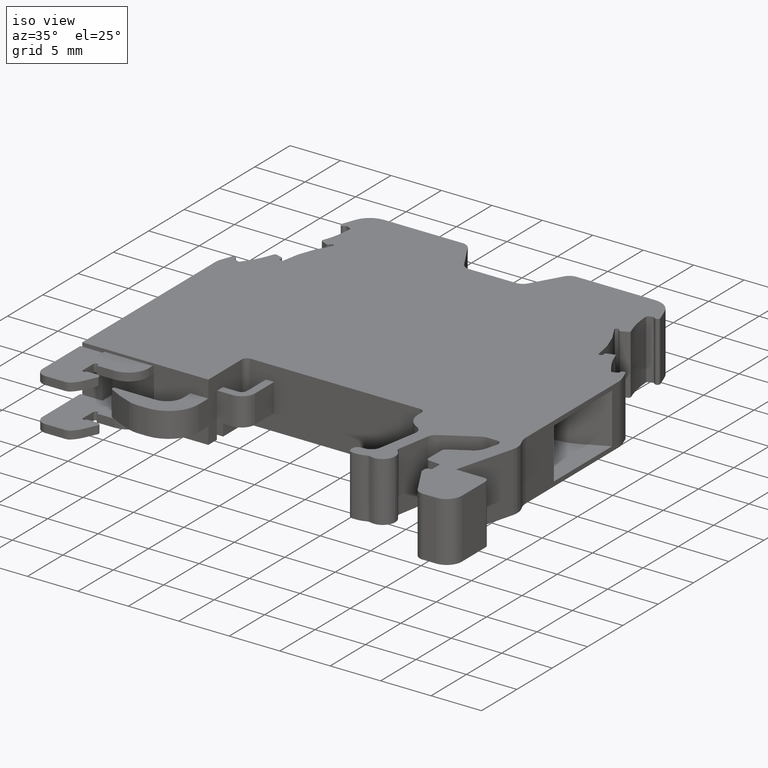
[diagram: clean part render]
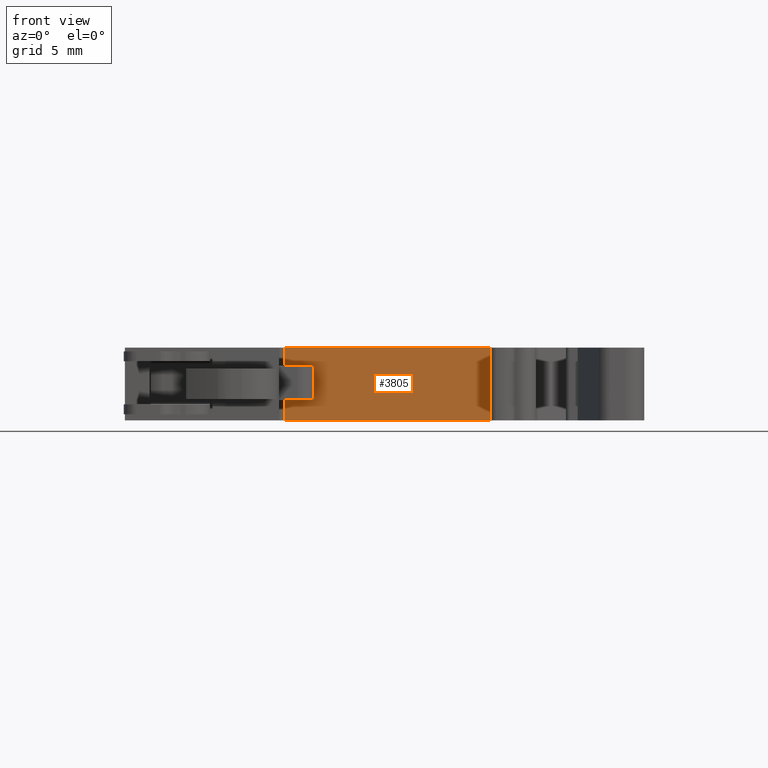
[diagram: tour spotlight — one face highlighted and labeled with its STEP entity id]
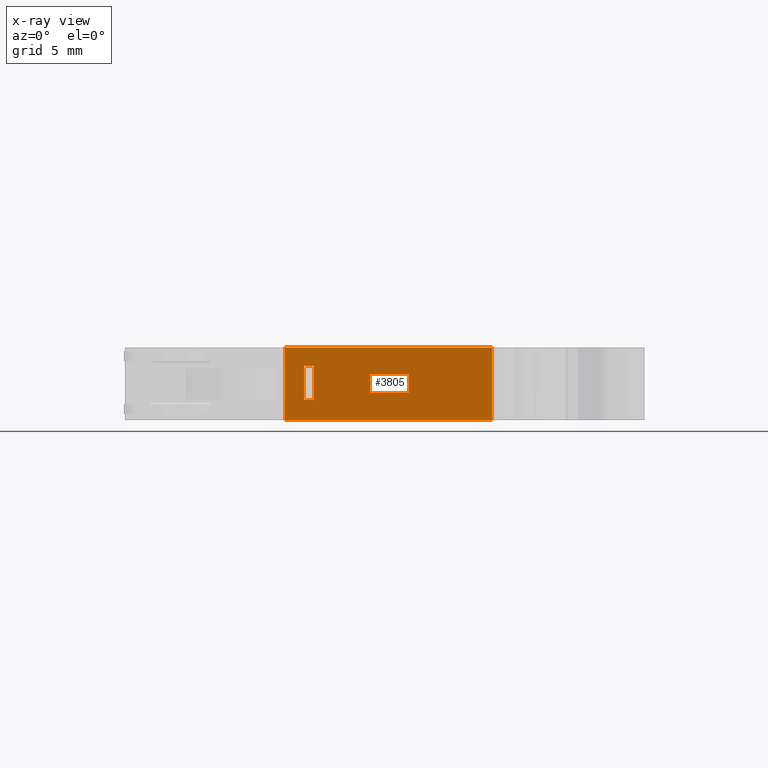
[diagram: x-ray of the same camera — body ghosted, this tour face saturated]
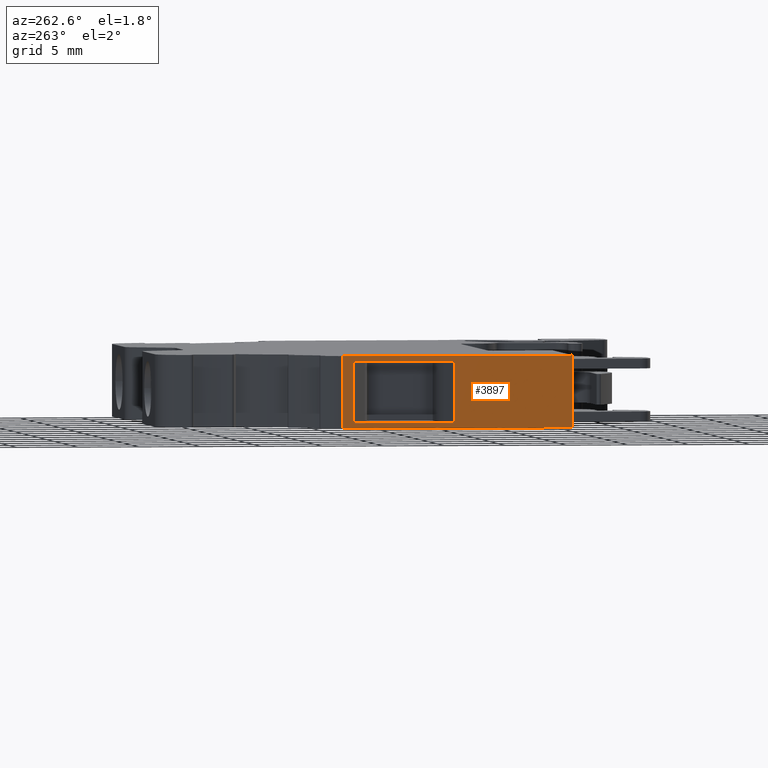
[diagram: tour spotlight — one face highlighted and labeled with its STEP entity id]
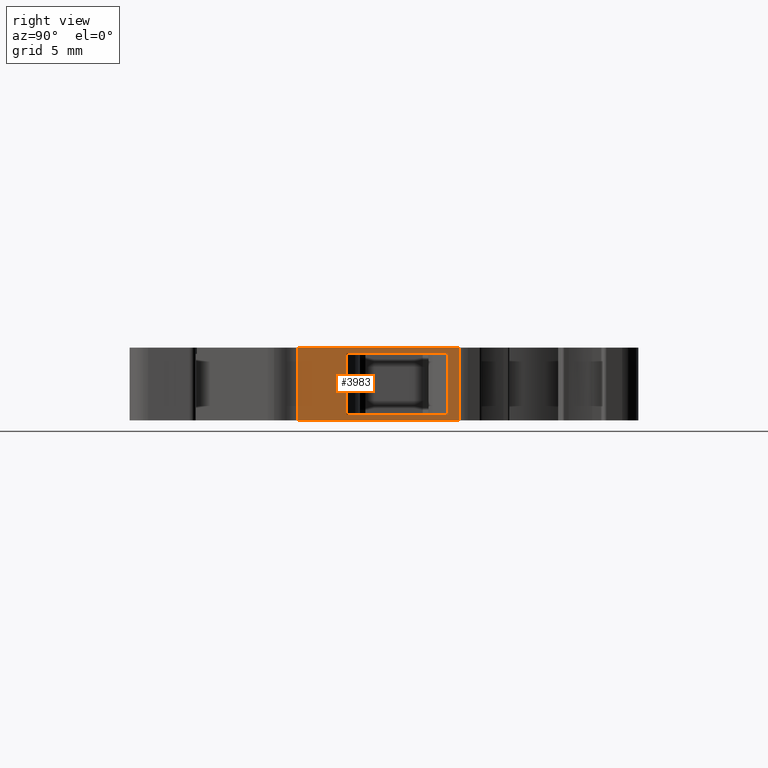
[diagram: tour spotlight — one face highlighted and labeled with its STEP entity id]
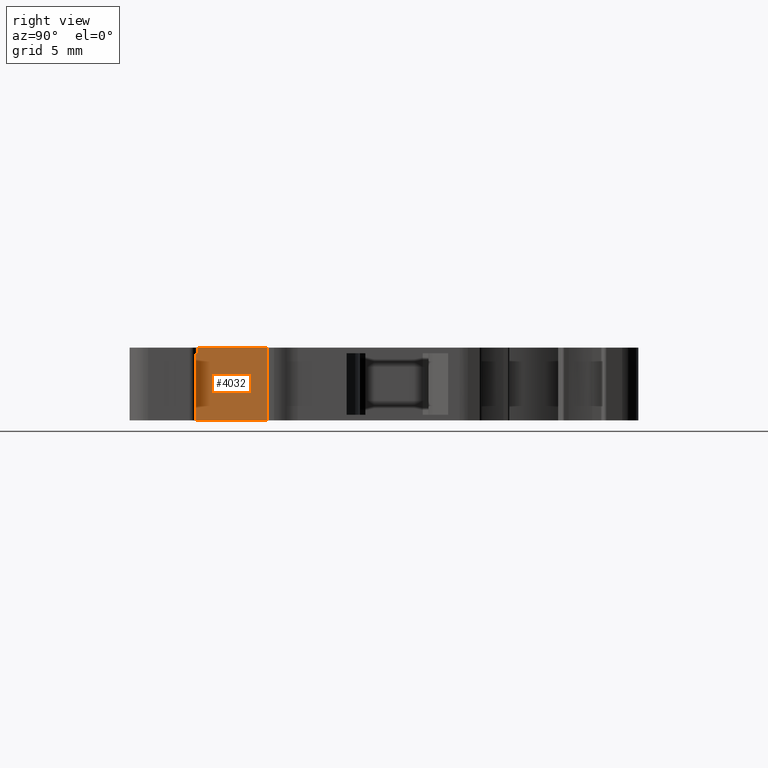
[diagram: tour spotlight — one face highlighted and labeled with its STEP entity id]
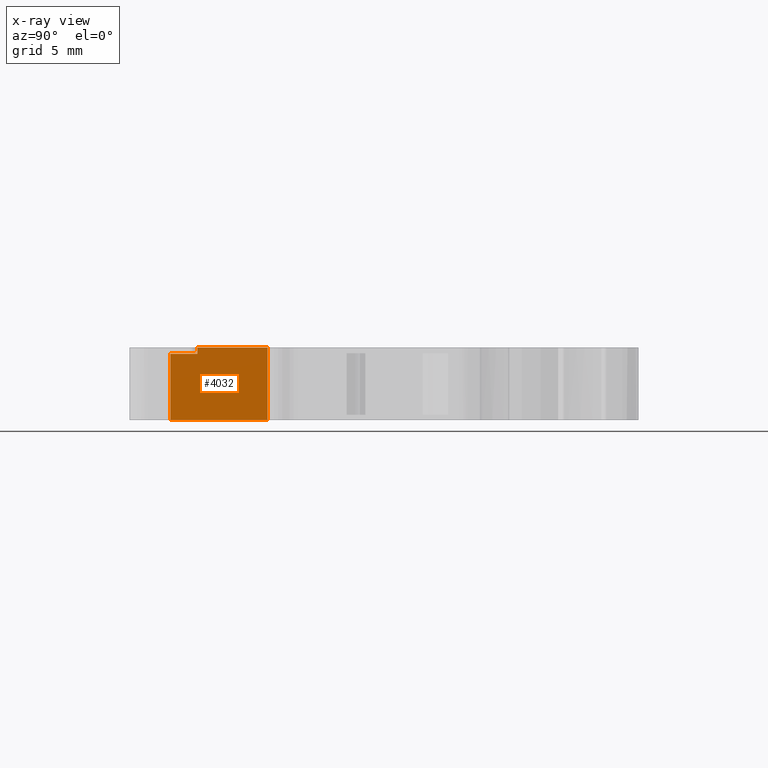
[diagram: x-ray of the same camera — body ghosted, this tour face saturated]
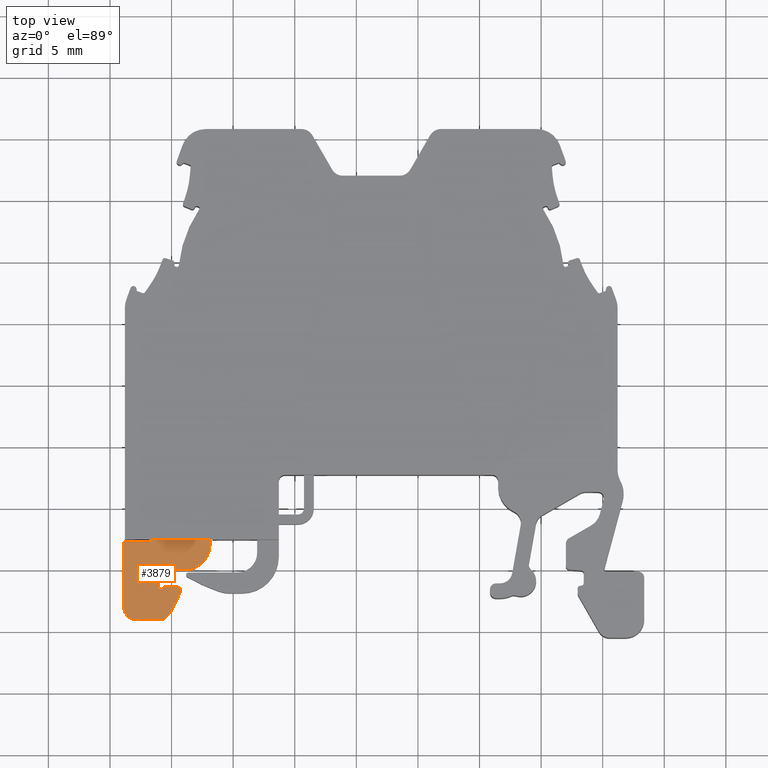
[diagram: tour spotlight — one face highlighted and labeled with its STEP entity id]
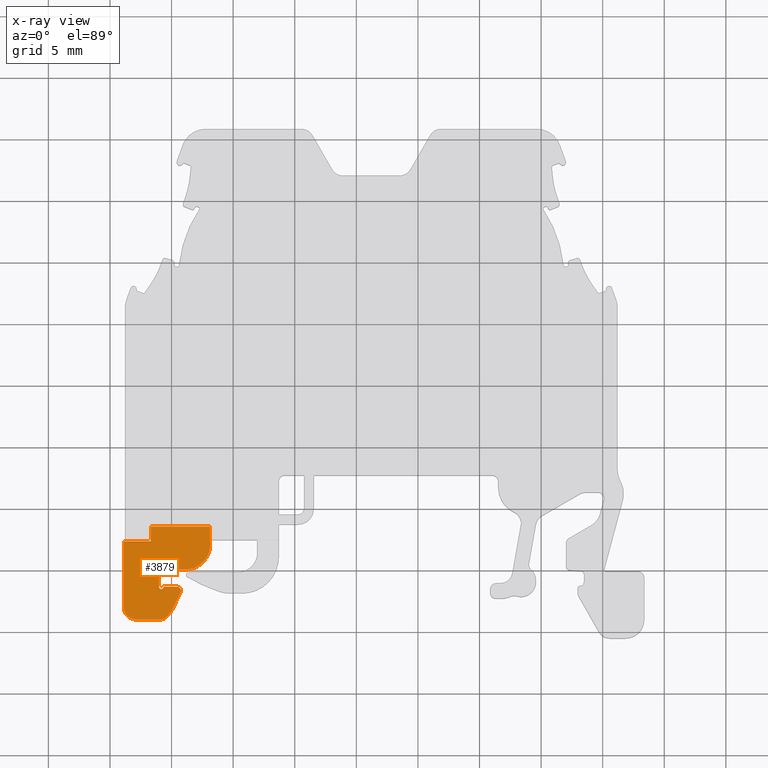
[diagram: x-ray of the same camera — body ghosted, this tour face saturated]
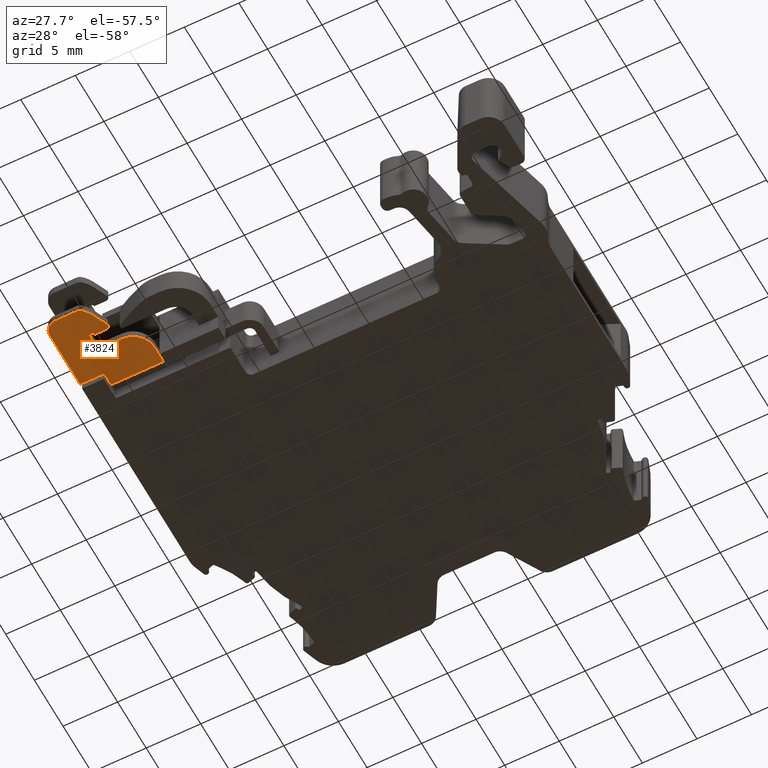
[diagram: tour spotlight — one face highlighted and labeled with its STEP entity id]
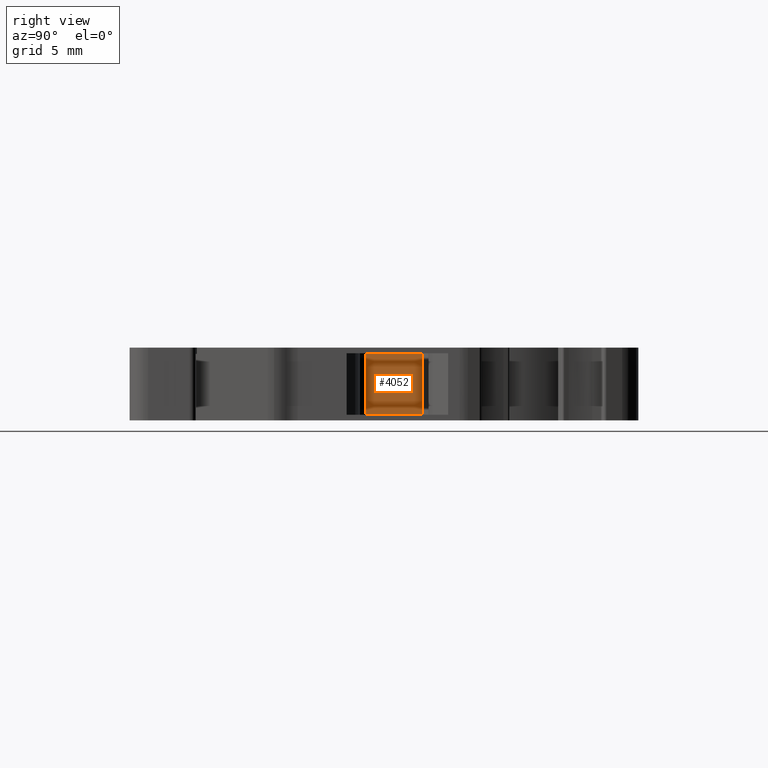
[diagram: tour spotlight — one face highlighted and labeled with its STEP entity id]
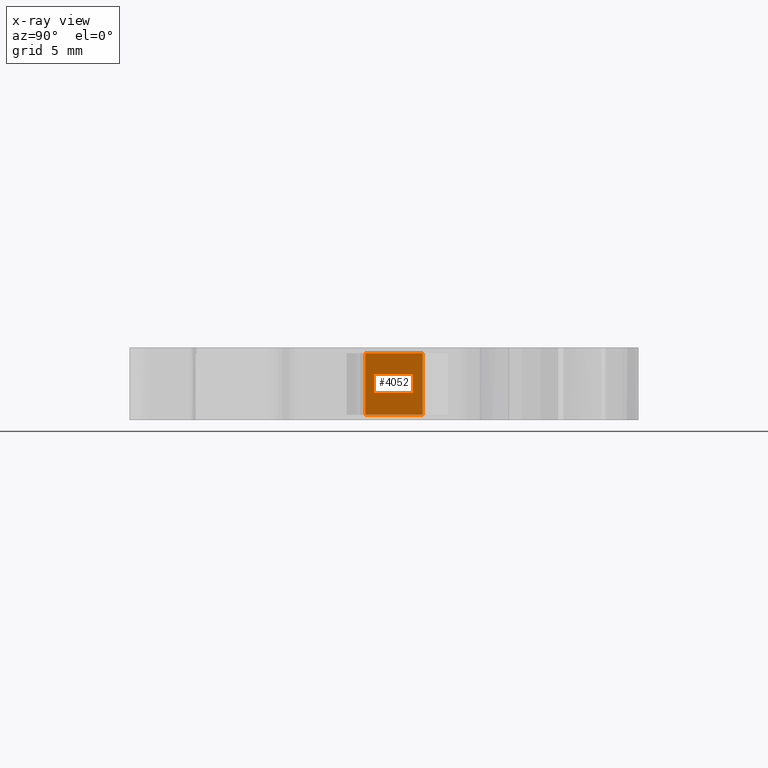
[diagram: x-ray of the same camera — body ghosted, this tour face saturated]
A machine part: a face-by-face anatomy tour. The part has 270 B-rep faces; the first image is the clean iso view, then the 7 largest visible faces are spotlighted one at a time (largest first), each with its STEP entity span.

Face 1 — front view, entity #3805. An x-ray twin of the same camera follows (body ghosted, this face saturated) — the face is partly hidden behind the body. In plain terms, the highlighted planar face has unit normal (-0, -1, 0).
Definition (entity closure, byte-faithful):
#290 = EDGE_LOOP ( 'NONE', ( #562, #536, #564, #544 ) ) ;
#293 = EDGE_LOOP ( 'NONE', ( #568, #529, #551, #533 ) ) ;
#529 = ORIENTED_EDGE ( 'NONE', *, *, #4327, .T. ) ;
#533 = ORIENTED_EDGE ( 'NONE', *, *, #4352, .F. ) ;
#536 = ORIENTED_EDGE ( 'NONE', *, *, #4247, .T. ) ;
#544 = ORIENTED_EDGE ( 'NONE', *, *, #4331, .T. ) ;
#551 = ORIENTED_EDGE ( 'NONE', *, *, #4313, .T. ) ;
#562 = ORIENTED_EDGE ( 'NONE', *, *, #4326, .F. ) ;
#564 = ORIENTED_EDGE ( 'NONE', *, *, #4171, .F. ) ;
#568 = ORIENTED_EDGE ( 'NONE', *, *, #4245, .T. ) ;
#1093 = VERTEX_POINT ( 'NONE', #8262 ) ;
#1178 = VERTEX_POINT ( 'NONE', #7699 ) ;
#1179 = VERTEX_POINT ( 'NONE', #7727 ) ;
#1214 = VERTEX_POINT ( 'NONE', #9705 ) ;
#1216 = VERTEX_POINT ( 'NONE', #9668 ) ;
#1226 = VERTEX_POINT ( 'NONE', #9683 ) ;
#1228 = VERTEX_POINT ( 'NONE', #9657 ) ;
#1246 = VERTEX_POINT ( 'NONE', #9660 ) ;
#1528 = AXIS2_PLACEMENT_3D ( 'NONE', #4506, #4496, #4462 ) ;
#1825 = VECTOR ( 'NONE', #9059, 1000.000000000000000 ) ;
#1862 = VECTOR ( 'NONE', #9432, 1000.000000000000000 ) ;
#1890 = VECTOR ( 'NONE', #9435, 1000.000000000000000 ) ;
#1921 = VECTOR ( 'NONE', #2881, 1000.000000000000000 ) ;
#1947 = VECTOR ( 'NONE', #2660, 1000.000000000000000 ) ;
#1950 = VECTOR ( 'NONE', #2808, 1000.000000000000000 ) ;
#1968 = VECTOR ( 'NONE', #2732, 1000.000000000000000 ) ;
#2660 = DIRECTION ( 'NONE',  ( 0.0000000000000000000, 0.0000000000000000000, 1.000000000000000000 ) ) ;
#2684 = CARTESIAN_POINT ( 'NONE',  ( 1696.008848378084600, 337.6986009364560500, -62.07273415799103600 ) ) ;
#2688 = LINE ( 'NONE', #2684, #1947 ) ;
#2717 = CARTESIAN_POINT ( 'NONE',  ( 1690.408883333013100, 337.6986025649917500, -3.049999999943056500 ) ) ;
#2718 = CARTESIAN_POINT ( 'NONE',  ( 1696.008848378084600, 337.6986009364561000, -3.049999999943073800 ) ) ;
#2727 = CARTESIAN_POINT ( 'NONE',  ( 1684.808918287941700, 337.6986041935273900, -3.049999999943056500 ) ) ;
#2728 = CARTESIAN_POINT ( 'NONE',  ( 1682.085109593310100, 337.6986051683812200, 1.398790164701575900 ) ) ;
#2732 = DIRECTION ( 'NONE',  ( -1.000000000000000000, -0.0000000000000000000, 1.644515809379887600E-015 ) ) ;
#2735 = LINE ( 'NONE', #2763, #1950 ) ;
#2745 = CARTESIAN_POINT ( 'NONE',  ( 1679.208953242869900, 337.6986058220631400, -3.049999999943057400 ) ) ;
#2755 = LINE ( 'NONE', #2728, #1968 ) ;
#2763 = CARTESIAN_POINT ( 'NONE',  ( 1680.748959148920000, 337.6986053742112400, -62.07273415799103600 ) ) ;
#2808 = DIRECTION ( 'NONE',  ( 0.0000000000000000000, 0.0000000000000000000, 1.000000000000000000 ) ) ;
#2870 = CARTESIAN_POINT ( 'NONE',  ( 1701.754414352425100, 337.6986058220630900, 2.850000000059721200 ) ) ;
#2881 = DIRECTION ( 'NONE',  ( 1.000000000000000000, 0.0000000000000000000, -0.0000000000000000000 ) ) ;
#2904 = LINE ( 'NONE', #2870, #1921 ) ;
#3805 = ADVANCED_FACE ( 'NONE', ( #4487, #4494 ), #4504, .T. ) ;
#4171 = EDGE_CURVE ( 'NONE', #1093, #1178, #9025, .T. ) ;
#4245 = EDGE_CURVE ( 'NONE', #1214, #1228, #9419, .T. ) ;
#4247 = EDGE_CURVE ( 'NONE', #1179, #1178, #9433, .T. ) ;
#4313 = EDGE_CURVE ( 'NONE', #1226, #1216, #2688, .T. ) ;
#4326 = EDGE_CURVE ( 'NONE', #1179, #1246, #2755, .T. ) ;
#4327 = EDGE_CURVE ( 'NONE', #1228, #1226, #6503, .T. ) ;
#4331 = EDGE_CURVE ( 'NONE', #1093, #1246, #2735, .T. ) ;
#4352 = EDGE_CURVE ( 'NONE', #1214, #1216, #2904, .T. ) ;
#4462 = DIRECTION ( 'NONE',  ( 0.9999999999999578100, -2.908117574975970900E-007, 0.0000000000000000000 ) ) ;
#4487 = FACE_OUTER_BOUND ( 'NONE', #293, .T. ) ;
#4494 = FACE_BOUND ( 'NONE', #290, .T. ) ;
#4496 = DIRECTION ( 'NONE',  ( -2.908117574975970900E-007, -0.9999999999999578100, 0.0000000000000000000 ) ) ;
#4504 = PLANE ( 'NONE',  #1528 ) ;
#4506 = CARTESIAN_POINT ( 'NONE',  ( 1679.208953242869900, 337.6986058220630900, -62.07273415799103600 ) ) ;
#6503 = B_SPLINE_CURVE_WITH_KNOTS ( 'NONE', 3,
 ( #2745, #2727, #2717, #2718 ),
 .UNSPECIFIED., .F., .F.,
 ( 4, 4 ),
 ( 0.0000000000000000000, 1.000000000000000000 ),
 .UNSPECIFIED. ) ;
#7699 = CARTESIAN_POINT ( 'NONE',  ( 1681.548959084762800, 337.6986052330059900, -1.401209835298408400 ) ) ;
#7727 = CARTESIAN_POINT ( 'NONE',  ( 1681.548959053383000, 337.6986051665501800, 1.398790164701583200 ) ) ;
#8262 = CARTESIAN_POINT ( 'NONE',  ( 1680.748958959710300, 337.6986053589166700, -1.401209835298407000 ) ) ;
#9025 = LINE ( 'NONE', #9062, #1825 ) ;
#9059 = DIRECTION ( 'NONE',  ( 1.000000000000000000, -0.0000000000000000000, -1.644515809379887600E-015 ) ) ;
#9062 = CARTESIAN_POINT ( 'NONE',  ( 1680.248958321860100, 337.6986053677486600, -1.401209835298405900 ) ) ;
#9395 = CARTESIAN_POINT ( 'NONE',  ( 1681.548958959244400, 337.6986051415619300, -62.07273415799103600 ) ) ;
#9416 = CARTESIAN_POINT ( 'NONE',  ( 1679.208953242869900, 337.6986058220630900, -62.07273415799103600 ) ) ;
#9419 = LINE ( 'NONE', #9416, #1862 ) ;
#9432 = DIRECTION ( 'NONE',  ( -0.0000000000000000000, -0.0000000000000000000, -1.000000000000000000 ) ) ;
#9433 = LINE ( 'NONE', #9395, #1890 ) ;
#9435 = DIRECTION ( 'NONE',  ( -0.0000000000000000000, -0.0000000000000000000, -1.000000000000000000 ) ) ;
#9657 = CARTESIAN_POINT ( 'NONE',  ( 1679.208953242869900, 337.6986058220631400, -3.049999999943057400 ) ) ;
#9660 = CARTESIAN_POINT ( 'NONE',  ( 1680.748959148686900, 337.6986052924608500, 1.398790164701584100 ) ) ;
#9668 = CARTESIAN_POINT ( 'NONE',  ( 1696.008848378084600, 337.6986009364561000, 2.850000000059717200 ) ) ;
#9683 = CARTESIAN_POINT ( 'NONE',  ( 1696.008848378084600, 337.6986009364561000, -3.049999999943073800 ) ) ;
#9705 = CARTESIAN_POINT ( 'NONE',  ( 1679.208953242869900, 337.6986058220630900, 2.850000000059717200 ) ) ;

Face 2 — auxiliary view, entity #3897. In plain terms, the highlighted planar face has unit normal (-1, 0, 0).
Definition (entity closure, byte-faithful):
#57 = EDGE_LOOP ( 'NONE', ( #6221, #6169, #6220, #6175 ) ) ;
#72 = EDGE_LOOP ( 'NONE', ( #6252, #6174, #6201, #6190 ) ) ;
#965 = EDGE_CURVE ( 'NONE', #6158, #6096, #6813, .T. ) ;
#1222 = VERTEX_POINT ( 'NONE', #9693 ) ;
#1244 = VERTEX_POINT ( 'NONE', #9658 ) ;
#1275 = VECTOR ( 'NONE', #6831, 1000.000000000000100 ) ;
#1392 = VECTOR ( 'NONE', #9631, 1000.000000000000100 ) ;
#1430 = VECTOR ( 'NONE', #2000, 1000.000000000000000 ) ;
#1482 = VECTOR ( 'NONE', #2015, 1000.000000000000100 ) ;
#1489 = VECTOR ( 'NONE', #2203, 1000.000000000000000 ) ;
#1497 = VECTOR ( 'NONE', #2040, 1000.000000000000000 ) ;
#1513 = VECTOR ( 'NONE', #2101, 1000.000000000000000 ) ;
#1618 = AXIS2_PLACEMENT_3D ( 'NONE', #5097, #5181, #5183 ) ;
#1984 = CARTESIAN_POINT ( 'NONE',  ( 1666.208847747656100, 341.7030214376742900, -2.599999999950003200 ) ) ;
#1986 = LINE ( 'NONE', #1984, #1482 ) ;
#1991 = LINE ( 'NONE', #2027, #1430 ) ;
#2000 = DIRECTION ( 'NONE',  ( 1.036171361727203400E-025, 1.060058020328782400E-020, -1.000000000000000000 ) ) ;
#2015 = DIRECTION ( 'NONE',  ( 6.220464541425654800E-007, 0.9999999999998064900, -0.0000000000000000000 ) ) ;
#2027 = CARTESIAN_POINT ( 'NONE',  ( 1666.208841987195000, 332.4425214925665300, -2.999999999943195200 ) ) ;
#2029 = LINE ( 'NONE', #2079, #1497 ) ;
#2040 = DIRECTION ( 'NONE',  ( -0.0000000000000000000, -0.0000000000000000000, -1.000000000000000000 ) ) ;
#2079 = CARTESIAN_POINT ( 'NONE',  ( 1666.208853683067900, 351.2447713878120200, -62.07273415799103600 ) ) ;
#2085 = LINE ( 'NONE', #2097, #1513 ) ;
#2097 = CARTESIAN_POINT ( 'NONE',  ( 1666.208853106391900, 350.3177087069331000, -62.07273415799103600 ) ) ;
#2101 = DIRECTION ( 'NONE',  ( 0.0000000000000000000, 0.0000000000000000000, 1.000000000000000000 ) ) ;
#2203 = DIRECTION ( 'NONE',  ( -0.0000000000000000000, -0.0000000000000000000, -1.000000000000000000 ) ) ;
#2211 = LINE ( 'NONE', #2215, #1489 ) ;
#2215 = CARTESIAN_POINT ( 'NONE',  ( 1666.208847984620000, 342.0839635412322100, -62.07273415799103600 ) ) ;
#2768 = CARTESIAN_POINT ( 'NONE',  ( 1666.208849784443600, 344.9773547560635100, -3.049999999942945500 ) ) ;
#2771 = CARTESIAN_POINT ( 'NONE',  ( 1666.208845885819300, 338.7099381243149900, -3.049999999942945500 ) ) ;
#2781 = CARTESIAN_POINT ( 'NONE',  ( 1666.208853699440400, 351.2447713878120200, -3.049999999943001000 ) ) ;
#2794 = CARTESIAN_POINT ( 'NONE',  ( 1666.208841987195000, 332.4425214925664700, -3.049999999943010700 ) ) ;
#3351 = CARTESIAN_POINT ( 'NONE',  ( 1666.208853699440400, 351.2447713878120200, 2.850000000059750500 ) ) ;
#3353 = CARTESIAN_POINT ( 'NONE',  ( 1666.208848376289800, 342.0839627843840300, -2.599999999950031600 ) ) ;
#3402 = CARTESIAN_POINT ( 'NONE',  ( 1666.208841987195000, 332.4425214925664700, 2.850000000059721200 ) ) ;
#3419 = CARTESIAN_POINT ( 'NONE',  ( 1666.208849841121300, 342.0839633276244700, 2.400000000073957600 ) ) ;
#3461 = CARTESIAN_POINT ( 'NONE',  ( 1666.208848767959800, 350.3177106847508600, -2.599999999950059600 ) ) ;
#3502 = CARTESIAN_POINT ( 'NONE',  ( 1666.208853121618200, 350.3177085393297100, 2.400000000095554100 ) ) ;
#3655 = EDGE_CURVE ( 'NONE', #6064, #6088, #9604, .T. ) ;
#3735 = EDGE_CURVE ( 'NONE', #6072, #6121, #1986, .T. ) ;
#3740 = EDGE_CURVE ( 'NONE', #6088, #1222, #1991, .T. ) ;
#3748 = EDGE_CURVE ( 'NONE', #6064, #1244, #2029, .T. ) ;
#3762 = EDGE_CURVE ( 'NONE', #6121, #6158, #2085, .T. ) ;
#3785 = EDGE_CURVE ( 'NONE', #6096, #6072, #2211, .T. ) ;
#3897 = ADVANCED_FACE ( 'NONE', ( #5135, #5107 ), #5153, .T. ) ;
#4334 = EDGE_CURVE ( 'NONE', #1244, #1222, #6523, .T. ) ;
#5097 = CARTESIAN_POINT ( 'NONE',  ( 1666.208847747656100, 341.7030214376742900, -62.07273415799103600 ) ) ;
#5107 = FACE_OUTER_BOUND ( 'NONE', #72, .T. ) ;
#5135 = FACE_BOUND ( 'NONE', #57, .T. ) ;
#5153 = PLANE ( 'NONE',  #1618 ) ;
#5181 = DIRECTION ( 'NONE',  ( -0.9999999999998066000, 6.220464541425655900E-007, 0.0000000000000000000 ) ) ;
#5183 = DIRECTION ( 'NONE',  ( -6.220464541425654800E-007, -0.9999999999998064900, 0.0000000000000000000 ) ) ;
#6064 = VERTEX_POINT ( 'NONE', #3351 ) ;
#6072 = VERTEX_POINT ( 'NONE', #3353 ) ;
#6088 = VERTEX_POINT ( 'NONE', #3402 ) ;
#6096 = VERTEX_POINT ( 'NONE', #3419 ) ;
#6121 = VERTEX_POINT ( 'NONE', #3461 ) ;
#6158 = VERTEX_POINT ( 'NONE', #3502 ) ;
#6169 = ORIENTED_EDGE ( 'NONE', *, *, #3735, .T. ) ;
#6174 = ORIENTED_EDGE ( 'NONE', *, *, #3740, .F. ) ;
#6175 = ORIENTED_EDGE ( 'NONE', *, *, #965, .T. ) ;
#6190 = ORIENTED_EDGE ( 'NONE', *, *, #3748, .T. ) ;
#6201 = ORIENTED_EDGE ( 'NONE', *, *, #3655, .F. ) ;
#6220 = ORIENTED_EDGE ( 'NONE', *, *, #3762, .T. ) ;
#6221 = ORIENTED_EDGE ( 'NONE', *, *, #3785, .T. ) ;
#6252 = ORIENTED_EDGE ( 'NONE', *, *, #4334, .T. ) ;
#6523 = B_SPLINE_CURVE_WITH_KNOTS ( 'NONE', 3,
 ( #2781, #2768, #2771, #2794 ),
 .UNSPECIFIED., .F., .F.,
 ( 4, 4 ),
 ( 0.0000000000000000000, 1.000000000000000000 ),
 .UNSPECIFIED. ) ;
#6813 = LINE ( 'NONE', #6814, #1275 ) ;
#6814 = CARTESIAN_POINT ( 'NONE',  ( 1666.208847747656100, 341.7030214376742900, 2.400000000065301500 ) ) ;
#6831 = DIRECTION ( 'NONE',  ( -6.220464541425654800E-007, -0.9999999999998064900, 0.0000000000000000000 ) ) ;
#9604 = LINE ( 'NONE', #9614, #1392 ) ;
#9614 = CARTESIAN_POINT ( 'NONE',  ( 1666.208853702227100, 351.2447713878120200, 2.850000000059721200 ) ) ;
#9631 = DIRECTION ( 'NONE',  ( -6.230654374244968100E-007, -0.9999999999998058200, 0.0000000000000000000 ) ) ;
#9658 = CARTESIAN_POINT ( 'NONE',  ( 1666.208853699440400, 351.2447713878120200, -3.049999999943001000 ) ) ;
#9693 = CARTESIAN_POINT ( 'NONE',  ( 1666.208841987195000, 332.4425214925664700, -3.049999999943010700 ) ) ;

Face 3 — right view, entity #3983. In plain terms, the highlighted planar face has unit normal (1, -0, 0).
Definition (entity closure, byte-faithful):
#101 = EDGE_LOOP ( 'NONE', ( #5020, #4866, #4834, #5046 ) ) ;
#112 = EDGE_LOOP ( 'NONE', ( #5042, #4942, #4976, #4997 ) ) ;
#759 = VERTEX_POINT ( 'NONE', #7068 ) ;
#790 = VERTEX_POINT ( 'NONE', #7078 ) ;
#870 = VERTEX_POINT ( 'NONE', #7223 ) ;
#885 = VERTEX_POINT ( 'NONE', #7205 ) ;
#919 = EDGE_CURVE ( 'NONE', #6136, #6167, #7245, .T. ) ;
#923 = EDGE_CURVE ( 'NONE', #790, #759, #7266, .T. ) ;
#925 = EDGE_CURVE ( 'NONE', #885, #870, #7329, .T. ) ;
#954 = EDGE_CURVE ( 'NONE', #6157, #6102, #7411, .T. ) ;
#982 = EDGE_CURVE ( 'NONE', #6102, #6136, #7777, .T. ) ;
#1033 = EDGE_CURVE ( 'NONE', #6167, #6157, #8102, .T. ) ;
#1256 = VECTOR ( 'NONE', #7294, 1000.000000000000000 ) ;
#1273 = VECTOR ( 'NONE', #7328, 1000.000000000000000 ) ;
#1291 = VECTOR ( 'NONE', #7253, 1000.000000000000100 ) ;
#1292 = VECTOR ( 'NONE', #6822, 1000.000000000000100 ) ;
#1312 = VECTOR ( 'NONE', #8123, 1000.000000000000000 ) ;
#1333 = VECTOR ( 'NONE', #7795, 1000.000000000000000 ) ;
#1398 = VECTOR ( 'NONE', #9966, 1000.000000000000000 ) ;
#1730 = AXIS2_PLACEMENT_3D ( 'NONE', #5786, #5781, #5773 ) ;
#3232 = CARTESIAN_POINT ( 'NONE',  ( 1706.208854046964900, 338.1158949326385300, -3.049999999943099600 ) ) ;
#3234 = CARTESIAN_POINT ( 'NONE',  ( 1706.208854960151300, 342.4921832532310800, -3.049999999943098200 ) ) ;
#3264 = CARTESIAN_POINT ( 'NONE',  ( 1706.208855873337400, 346.8684715738235100, -3.049999999943098200 ) ) ;
#3269 = CARTESIAN_POINT ( 'NONE',  ( 1706.208856792560700, 351.2447598944160100, -3.049999999943099600 ) ) ;
#3426 = CARTESIAN_POINT ( 'NONE',  ( 1706.208854873296300, 342.0839504688110500, 2.400000000065211300 ) ) ;
#3445 = CARTESIAN_POINT ( 'NONE',  ( 1706.208855558529000, 342.0839501219352900, -2.599999999964412100 ) ) ;
#3477 = CARTESIAN_POINT ( 'NONE',  ( 1706.208854871626000, 350.3176953346056700, 2.400000000063899500 ) ) ;
#3503 = CARTESIAN_POINT ( 'NONE',  ( 1706.208856593908600, 350.3176960506567100, -2.599999999954637300 ) ) ;
#3609 = EDGE_CURVE ( 'NONE', #790, #870, #9965, .T. ) ;
#3983 = ADVANCED_FACE ( 'NONE', ( #5772, #5774 ), #5752, .T. ) ;
#4440 = EDGE_CURVE ( 'NONE', #759, #885, #6598, .T. ) ;
#4834 = ORIENTED_EDGE ( 'NONE', *, *, #1033, .T. ) ;
#4866 = ORIENTED_EDGE ( 'NONE', *, *, #919, .T. ) ;
#4942 = ORIENTED_EDGE ( 'NONE', *, *, #3609, .F. ) ;
#4976 = ORIENTED_EDGE ( 'NONE', *, *, #923, .T. ) ;
#4997 = ORIENTED_EDGE ( 'NONE', *, *, #4440, .T. ) ;
#5020 = ORIENTED_EDGE ( 'NONE', *, *, #982, .T. ) ;
#5042 = ORIENTED_EDGE ( 'NONE', *, *, #925, .T. ) ;
#5046 = ORIENTED_EDGE ( 'NONE', *, *, #954, .T. ) ;
#5752 = PLANE ( 'NONE',  #1730 ) ;
#5772 = FACE_BOUND ( 'NONE', #101, .T. ) ;
#5773 = DIRECTION ( 'NONE',  ( 2.086667872309205200E-007, 0.9999999999999781300, 0.0000000000000000000 ) ) ;
#5774 = FACE_OUTER_BOUND ( 'NONE', #112, .T. ) ;
#5781 = DIRECTION ( 'NONE',  ( 0.9999999999999782400, -2.086667872309205500E-007, 0.0000000000000000000 ) ) ;
#5786 = CARTESIAN_POINT ( 'NONE',  ( 1706.208856657855700, 350.6281421903866500, -62.07273415799103600 ) ) ;
#6102 = VERTEX_POINT ( 'NONE', #3445 ) ;
#6136 = VERTEX_POINT ( 'NONE', #3426 ) ;
#6157 = VERTEX_POINT ( 'NONE', #3503 ) ;
#6167 = VERTEX_POINT ( 'NONE', #3477 ) ;
#6598 = B_SPLINE_CURVE_WITH_KNOTS ( 'NONE', 3,
 ( #3232, #3234, #3264, #3269 ),
 .UNSPECIFIED., .F., .F.,
 ( 4, 4 ),
 ( 0.0000000000000000000, 1.000000000000000000 ),
 .UNSPECIFIED. ) ;
#6822 = DIRECTION ( 'NONE',  ( -2.086667872309205200E-007, -0.9999999999999781300, -0.0000000000000000000 ) ) ;
#6837 = CARTESIAN_POINT ( 'NONE',  ( 1706.208856657855700, 350.6281421903866500, -2.599999999951987800 ) ) ;
#7068 = CARTESIAN_POINT ( 'NONE',  ( 1706.208854046964900, 338.1158949326385300, -3.049999999943099600 ) ) ;
#7078 = CARTESIAN_POINT ( 'NONE',  ( 1706.208854046964900, 338.1158949326385300, 2.850000000059717200 ) ) ;
#7205 = CARTESIAN_POINT ( 'NONE',  ( 1706.208856792560700, 351.2447598944160100, -3.049999999943099600 ) ) ;
#7223 = CARTESIAN_POINT ( 'NONE',  ( 1706.208856792560700, 351.2447599611892300, 2.850000000059717200 ) ) ;
#7245 = LINE ( 'NONE', #7270, #1291 ) ;
#7253 = DIRECTION ( 'NONE',  ( 2.086667872309205200E-007, 0.9999999999999781300, 0.0000000000000000000 ) ) ;
#7266 = LINE ( 'NONE', #7268, #1273 ) ;
#7268 = CARTESIAN_POINT ( 'NONE',  ( 1706.208854046965400, 338.1158949326385300, -62.07273415799103600 ) ) ;
#7270 = CARTESIAN_POINT ( 'NONE',  ( 1706.208856657855700, 350.6281421903866500, 2.400000000066522700 ) ) ;
#7294 = DIRECTION ( 'NONE',  ( -0.0000000000000000000, 0.0000000000000000000, 1.000000000000000000 ) ) ;
#7296 = CARTESIAN_POINT ( 'NONE',  ( 1706.208856786523500, 351.2447598944160100, -62.07273415799103600 ) ) ;
#7328 = DIRECTION ( 'NONE',  ( 0.0000000000000000000, -0.0000000000000000000, -1.000000000000000000 ) ) ;
#7329 = LINE ( 'NONE', #7296, #1256 ) ;
#7411 = LINE ( 'NONE', #6837, #1292 ) ;
#7777 = LINE ( 'NONE', #7793, #1333 ) ;
#7793 = CARTESIAN_POINT ( 'NONE',  ( 1706.208854874966600, 342.0839500401054900, -62.07273415799103600 ) ) ;
#7795 = DIRECTION ( 'NONE',  ( -0.0000000000000000000, 0.0000000000000000000, 1.000000000000000000 ) ) ;
#8101 = CARTESIAN_POINT ( 'NONE',  ( 1706.208856593076000, 350.3176958677327100, -62.07273415799103600 ) ) ;
#8102 = LINE ( 'NONE', #8101, #1312 ) ;
#8123 = DIRECTION ( 'NONE',  ( 0.0000000000000000000, -0.0000000000000000000, -1.000000000000000000 ) ) ;
#9923 = CARTESIAN_POINT ( 'NONE',  ( 1706.208854046964900, 363.1749323574455300, 2.850000000059721200 ) ) ;
#9965 = LINE ( 'NONE', #9923, #1398 ) ;
#9966 = DIRECTION ( 'NONE',  ( -0.0000000000000000000, 1.000000000000000000, 0.0000000000000000000 ) ) ;

Face 4 — right view, entity #4032. An x-ray twin of the same camera follows (body ghosted, this face saturated) — the face is partly hidden behind the body. In plain terms, the highlighted planar face has unit normal (0.9659, -0.2588, 0).
Definition (entity closure, byte-faithful):
#113 = EDGE_LOOP ( 'NONE', ( #4991, #4878, #4904, #5044, #4970, #4951 ) ) ;
#767 = VERTEX_POINT ( 'NONE', #7111 ) ;
#824 = VERTEX_POINT ( 'NONE', #7146 ) ;
#858 = VERTEX_POINT ( 'NONE', #7161 ) ;
#921 = EDGE_CURVE ( 'NONE', #6124, #1138, #7291, .T. ) ;
#946 = EDGE_CURVE ( 'NONE', #767, #6124, #7412, .T. ) ;
#1127 = VERTEX_POINT ( 'NONE', #7710 ) ;
#1138 = VERTEX_POINT ( 'NONE', #7747 ) ;
#1272 = VECTOR ( 'NONE', #7262, 1000.000000000000100 ) ;
#1295 = VECTOR ( 'NONE', #7417, 1000.000000000000000 ) ;
#1743 = VECTOR ( 'NONE', #8452, 1000.000000000000000 ) ;
#1781 = AXIS2_PLACEMENT_3D ( 'NONE', #8335, #8328, #8367 ) ;
#1850 = VECTOR ( 'NONE', #8603, 1000.000000000000000 ) ;
#1959 = VECTOR ( 'NONE', #3211, 1000.000000000000100 ) ;
#2928 = CARTESIAN_POINT ( 'NONE',  ( 1706.634516808495200, 335.6730479059480100, -3.049999999943073800 ) ) ;
#2946 = CARTESIAN_POINT ( 'NONE',  ( 1704.516313285944100, 327.7672109350470500, -3.049999999943079600 ) ) ;
#2947 = CARTESIAN_POINT ( 'NONE',  ( 1705.928448967643800, 333.0377689156479700, -3.049999999943049800 ) ) ;
#2952 = CARTESIAN_POINT ( 'NONE',  ( 1705.222381126792700, 330.4024899253478800, -3.049999999943049800 ) ) ;
#3208 = CARTESIAN_POINT ( 'NONE',  ( 1705.104817718976800, 329.9637043572776100, 2.850000000059721200 ) ) ;
#3211 = DIRECTION ( 'NONE',  ( 0.2588009073990540900, 0.9659306860895486800, 0.0000000000000000000 ) ) ;
#3215 = LINE ( 'NONE', #3208, #1959 ) ;
#3448 = CARTESIAN_POINT ( 'NONE',  ( 1705.104817718977100, 329.9637043572776100, 2.350000000056904800 ) ) ;
#4032 = ADVANCED_FACE ( 'NONE', ( #7454 ), #8356, .T. ) ;
#4059 = EDGE_CURVE ( 'NONE', #858, #824, #8437, .T. ) ;
#4086 = EDGE_CURVE ( 'NONE', #1138, #1127, #8605, .T. ) ;
#4364 = EDGE_CURVE ( 'NONE', #1127, #858, #6497, .T. ) ;
#4429 = EDGE_CURVE ( 'NONE', #767, #824, #3215, .T. ) ;
#4878 = ORIENTED_EDGE ( 'NONE', *, *, #4364, .T. ) ;
#4904 = ORIENTED_EDGE ( 'NONE', *, *, #4059, .T. ) ;
#4951 = ORIENTED_EDGE ( 'NONE', *, *, #921, .T. ) ;
#4970 = ORIENTED_EDGE ( 'NONE', *, *, #946, .T. ) ;
#4991 = ORIENTED_EDGE ( 'NONE', *, *, #4086, .T. ) ;
#5044 = ORIENTED_EDGE ( 'NONE', *, *, #4429, .F. ) ;
#6124 = VERTEX_POINT ( 'NONE', #3448 ) ;
#6497 = B_SPLINE_CURVE_WITH_KNOTS ( 'NONE', 3,
 ( #2946, #2952, #2947, #2928 ),
 .UNSPECIFIED., .F., .F.,
 ( 4, 4 ),
 ( 0.0000000000000000000, 1.000000000000000000 ),
 .UNSPECIFIED. ) ;
#7111 = CARTESIAN_POINT ( 'NONE',  ( 1705.104817718976800, 329.9637043572777200, 2.850000000059714500 ) ) ;
#7146 = CARTESIAN_POINT ( 'NONE',  ( 1706.634516808495200, 335.6730479059480100, 2.850000000059750500 ) ) ;
#7161 = CARTESIAN_POINT ( 'NONE',  ( 1706.634516808495200, 335.6730479059480100, -3.049999999943073800 ) ) ;
#7240 = CARTESIAN_POINT ( 'NONE',  ( 1705.104817718977100, 329.9637043572776600, 2.350000000056924800 ) ) ;
#7262 = DIRECTION ( 'NONE',  ( -0.2588009073990237300, -0.9659306860895569000, -0.0000000000000000000 ) ) ;
#7291 = LINE ( 'NONE', #7240, #1272 ) ;
#7412 = LINE ( 'NONE', #7422, #1295 ) ;
#7417 = DIRECTION ( 'NONE',  ( -0.0000000000000000000, -0.0000000000000000000, -1.000000000000000000 ) ) ;
#7422 = CARTESIAN_POINT ( 'NONE',  ( 1705.104817718977100, 329.9637043572775500, -62.07273415799103600 ) ) ;
#7454 = FACE_OUTER_BOUND ( 'NONE', #113, .T. ) ;
#7710 = CARTESIAN_POINT ( 'NONE',  ( 1704.516313285944100, 327.7672109350470500, -3.049999999943079600 ) ) ;
#7747 = CARTESIAN_POINT ( 'NONE',  ( 1704.516313285943600, 327.7672109350471600, 2.350000000056923400 ) ) ;
#8328 = DIRECTION ( 'NONE',  ( 0.9659306860895569000, -0.2588009073990237300, 0.0000000000000000000 ) ) ;
#8335 = CARTESIAN_POINT ( 'NONE',  ( 1705.104817718977100, 329.9637043572776600, -62.07273415799103600 ) ) ;
#8356 = PLANE ( 'NONE',  #1781 ) ;
#8367 = DIRECTION ( 'NONE',  ( 0.2588009073990237300, 0.9659306860895569000, 0.0000000000000000000 ) ) ;
#8437 = LINE ( 'NONE', #8444, #1743 ) ;
#8444 = CARTESIAN_POINT ( 'NONE',  ( 1706.634516808495200, 335.6730479059480700, -62.07273415799103600 ) ) ;
#8452 = DIRECTION ( 'NONE',  ( -0.0000000000000000000, 0.0000000000000000000, 1.000000000000000000 ) ) ;
#8601 = CARTESIAN_POINT ( 'NONE',  ( 1704.516313285941400, 327.7672109350477900, -62.07273415799103600 ) ) ;
#8603 = DIRECTION ( 'NONE',  ( 0.0000000000000000000, -0.0000000000000000000, -1.000000000000000000 ) ) ;
#8605 = LINE ( 'NONE', #8601, #1850 ) ;

Face 5 — top view, entity #3879. An x-ray twin of the same camera follows (body ghosted, this face saturated) — the face is partly hidden behind the body. In plain terms, the highlighted planar face has unit normal (-0, -0, -1).
Definition (entity closure, byte-faithful):
#17 = ORIENTED_EDGE ( 'NONE', *, *, #4172, .F. ) ;
#192 = CARTESIAN_POINT ( 'NONE',  ( 1668.960185065935500, 328.5938569019971900, 2.548790173409661200 ) ) ;
#199 = EDGE_LOOP ( 'NONE', ( #682, #676, #9574, #664, #9592, #678, #681, #720, #687, #701, #679, #704, #666, #9581, #9588, #9558, #9577, #692, #717, #744, #17, #731 ) ) ;
#664 = ORIENTED_EDGE ( 'NONE', *, *, #4213, .F. ) ;
#666 = ORIENTED_EDGE ( 'NONE', *, *, #4217, .F. ) ;
#676 = ORIENTED_EDGE ( 'NONE', *, *, #4155, .T. ) ;
#678 = ORIENTED_EDGE ( 'NONE', *, *, #4132, .F. ) ;
#679 = ORIENTED_EDGE ( 'NONE', *, *, #4151, .F. ) ;
#681 = ORIENTED_EDGE ( 'NONE', *, *, #4168, .F. ) ;
#682 = ORIENTED_EDGE ( 'NONE', *, *, #4150, .F. ) ;
#687 = ORIENTED_EDGE ( 'NONE', *, *, #4110, .F. ) ;
#692 = ORIENTED_EDGE ( 'NONE', *, *, #4133, .F. ) ;
#701 = ORIENTED_EDGE ( 'NONE', *, *, #4204, .F. ) ;
#704 = ORIENTED_EDGE ( 'NONE', *, *, #4169, .F. ) ;
#717 = ORIENTED_EDGE ( 'NONE', *, *, #4113, .F. ) ;
#720 = ORIENTED_EDGE ( 'NONE', *, *, #4134, .F. ) ;
#731 = ORIENTED_EDGE ( 'NONE', *, *, #4228, .F. ) ;
#744 = ORIENTED_EDGE ( 'NONE', *, *, #4212, .F. ) ;
#1090 = VERTEX_POINT ( 'NONE', #8206 ) ;
#1092 = VERTEX_POINT ( 'NONE', #8264 ) ;
#1110 = VERTEX_POINT ( 'NONE', #8254 ) ;
#1112 = VERTEX_POINT ( 'NONE', #8232 ) ;
#1148 = VERTEX_POINT ( 'NONE', #7734 ) ;
#1157 = VERTEX_POINT ( 'NONE', #7755 ) ;
#1161 = VERTEX_POINT ( 'NONE', #7756 ) ;
#1162 = VERTEX_POINT ( 'NONE', #7715 ) ;
#1165 = VERTEX_POINT ( 'NONE', #7720 ) ;
#1166 = VERTEX_POINT ( 'NONE', #7740 ) ;
#1169 = VERTEX_POINT ( 'NONE', #7705 ) ;
#1176 = VERTEX_POINT ( 'NONE', #7729 ) ;
#1184 = VERTEX_POINT ( 'NONE', #7735 ) ;
#1188 = VERTEX_POINT ( 'NONE', #7952 ) ;
#1190 = VERTEX_POINT ( 'NONE', #6840 ) ;
#1192 = VERTEX_POINT ( 'NONE', #192 ) ;
#1197 = VERTEX_POINT ( 'NONE', #9697 ) ;
#1198 = VERTEX_POINT ( 'NONE', #9650 ) ;
#1201 = VERTEX_POINT ( 'NONE', #9706 ) ;
#1202 = VERTEX_POINT ( 'NONE', #9661 ) ;
#1203 = VERTEX_POINT ( 'NONE', #9647 ) ;
#1204 = VERTEX_POINT ( 'NONE', #9699 ) ;
#1669 = AXIS2_PLACEMENT_3D ( 'NONE', #4929, #4893, #4895 ) ;
#1803 = VECTOR ( 'NONE', #8903, 1000.000000000000100 ) ;
#1807 = VECTOR ( 'NONE', #8995, 1000.000000000000000 ) ;
#1812 = VECTOR ( 'NONE', #8964, 1000.000000000000000 ) ;
#1815 = VECTOR ( 'NONE', #8999, 1000.000000000000000 ) ;
#1835 = VECTOR ( 'NONE', #8782, 1000.000000000000000 ) ;
#1843 = VECTOR ( 'NONE', #9031, 1000.000000000000000 ) ;
#1858 = VECTOR ( 'NONE', #8884, 1000.000000000000000 ) ;
#1860 = VECTOR ( 'NONE', #9331, 1000.000000000000000 ) ;
#1864 = VECTOR ( 'NONE', #9216, 1000.000000000000000 ) ;
#1867 = VECTOR ( 'NONE', #9064, 1000.000000000000000 ) ;
#1874 = VECTOR ( 'NONE', #9253, 1000.000000000000000 ) ;
#1876 = VECTOR ( 'NONE', #9129, 1000.000000000000000 ) ;
#1895 = VECTOR ( 'NONE', #9224, 1000.000000000000000 ) ;
#3879 = ADVANCED_FACE ( 'NONE', ( #4861 ), #4887, .F. ) ;
#4110 = EDGE_CURVE ( 'NONE', #1166, #1157, #8779, .T. ) ;
#4113 = EDGE_CURVE ( 'NONE', #1192, #1201, #6783, .T. ) ;
#4132 = EDGE_CURVE ( 'NONE', #1188, #1184, #8902, .T. ) ;
#4133 = EDGE_CURVE ( 'NONE', #1201, #1204, #6740, .T. ) ;
#4134 = EDGE_CURVE ( 'NONE', #1157, #1169, #8879, .T. ) ;
#4150 = EDGE_CURVE ( 'NONE', #1203, #1190, #6750, .T. ) ;
#4151 = EDGE_CURVE ( 'NONE', #1202, #1176, #8958, .T. ) ;
#4152 = EDGE_CURVE ( 'NONE', #1184, #1092, #8925, .T. ) ;
#4155 = EDGE_CURVE ( 'NONE', #1203, #1197, #9002, .T. ) ;
#4168 = EDGE_CURVE ( 'NONE', #1169, #1188, #9028, .T. ) ;
#4169 = EDGE_CURVE ( 'NONE', #1198, #1202, #6794, .T. ) ;
#4172 = EDGE_CURVE ( 'NONE', #1112, #1110, #6798, .T. ) ;
#4176 = EDGE_CURVE ( 'NONE', #1165, #1161, #9053, .T. ) ;
#4194 = EDGE_CURVE ( 'NONE', #1162, #1197, #9147, .T. ) ;
#4204 = EDGE_CURVE ( 'NONE', #1176, #1166, #6795, .T. ) ;
#4207 = EDGE_CURVE ( 'NONE', #1148, #1204, #9223, .T. ) ;
#4211 = EDGE_CURVE ( 'NONE', #1148, #1090, #9211, .T. ) ;
#4212 = EDGE_CURVE ( 'NONE', #1110, #1192, #9209, .T. ) ;
#4213 = EDGE_CURVE ( 'NONE', #1092, #1162, #6789, .T. ) ;
#4217 = EDGE_CURVE ( 'NONE', #1161, #1198, #6801, .T. ) ;
#4228 = EDGE_CURVE ( 'NONE', #1190, #1112, #9307, .T. ) ;
#4234 = EDGE_CURVE ( 'NONE', #1090, #1165, #6475, .T. ) ;
#4861 = FACE_OUTER_BOUND ( 'NONE', #199, .T. ) ;
#4887 = PLANE ( 'NONE',  #1669 ) ;
#4893 = DIRECTION ( 'NONE',  ( -1.561044614324073900E-014, -3.491476941282016000E-015, -1.000000000000000000 ) ) ;
#4895 = DIRECTION ( 'NONE',  ( -1.000000000000000000, 0.0000000000000000000, 1.561044614324073900E-014 ) ) ;
#4929 = CARTESIAN_POINT ( 'NONE',  ( 1674.618958343234900, 333.4917260364495100, 2.548790173409545300 ) ) ;
#6475 = B_SPLINE_CURVE_WITH_KNOTS ( 'NONE', 3,
 ( #9366, #9340, #9364, #9356, #9361, #9367 ),
 .UNSPECIFIED., .F., .F.,
 ( 4, 2, 4 ),
 ( 0.0000000000000000000, 0.5000000000000000000, 1.000000000000000000 ),
 .UNSPECIFIED. ) ;
#6740 = B_SPLINE_CURVE_WITH_KNOTS ( 'NONE', 3,
 ( #8883, #8905, #8890, #8908, #8870, #8911 ),
 .UNSPECIFIED., .F., .F.,
 ( 4, 2, 4 ),
 ( 0.0000000000000000000, 0.4817281958571013000, 0.9634563917142026100 ),
 .UNSPECIFIED. ) ;
#6750 = B_SPLINE_CURVE_WITH_KNOTS ( 'NONE', 3,
 ( #8946, #8947, #8950, #8952 ),
 .UNSPECIFIED., .F., .F.,
 ( 4, 4 ),
 ( 0.5489209057652523200, 1.000000000000000000 ),
 .UNSPECIFIED. ) ;
#6783 = B_SPLINE_CURVE_WITH_KNOTS ( 'NONE', 3,
 ( #8826, #8863, #8817, #8843, #8861, #8837 ),
 .UNSPECIFIED., .F., .F.,
 ( 4, 2, 4 ),
 ( 0.0000000000000000000, 0.5000000000000000000, 1.000000000000000000 ),
 .UNSPECIFIED. ) ;
#6789 = B_SPLINE_CURVE_WITH_KNOTS ( 'NONE', 3,
 ( #9182, #9184, #9238, #9232, #9249, #9262, #9279, #9254, #9241, #9275 ),
 .UNSPECIFIED., .F., .F.,
 ( 4, 2, 2, 2, 4 ),
 ( 0.0000000000000000000, 0.2500000000000000000, 0.5000000000000000000, 0.7500000000000000000, 1.000000000000000000 ),
 .UNSPECIFIED. ) ;
#6794 = B_SPLINE_CURVE_WITH_KNOTS ( 'NONE', 3,
 ( #9040, #9066, #9060, #9057 ),
 .UNSPECIFIED., .F., .F.,
 ( 4, 4 ),
 ( 0.0000000000000000000, 1.000000000000000000 ),
 .UNSPECIFIED. ) ;
#6795 = B_SPLINE_CURVE_WITH_KNOTS ( 'NONE', 3,
 ( #9179, #9183, #9207, #9185, #9194, #9187 ),
 .UNSPECIFIED., .F., .F.,
 ( 4, 2, 4 ),
 ( 0.0000000000000000000, 0.5000000000000000000, 1.000000000000000000 ),
 .UNSPECIFIED. ) ;
#6798 = B_SPLINE_CURVE_WITH_KNOTS ( 'NONE', 3,
 ( #9048, #9037, #9041, #9042, #9044, #9055 ),
 .UNSPECIFIED., .F., .F.,
 ( 4, 2, 4 ),
 ( 0.0000000000000000000, 0.5000000000000000000, 1.000000000000000000 ),
 .UNSPECIFIED. ) ;
#6801 = B_SPLINE_CURVE_WITH_KNOTS ( 'NONE', 3,
 ( #9247, #9248, #9251, #9252 ),
 .UNSPECIFIED., .F., .F.,
 ( 4, 4 ),
 ( 0.0000000000000000000, 1.000000000000000000 ),
 .UNSPECIFIED. ) ;
#6840 = CARTESIAN_POINT ( 'NONE',  ( 1669.260185520695600, 330.2938568685589800, 2.548790173409653200 ) ) ;
#7705 = CARTESIAN_POINT ( 'NONE',  ( 1668.318958022229700, 332.2917281140804000, 2.548790173409648300 ) ) ;
#7715 = CARTESIAN_POINT ( 'NONE',  ( 1671.118746531070200, 329.9938562376298100, 2.548790173409618600 ) ) ;
#7720 = CARTESIAN_POINT ( 'NONE',  ( 1670.721448658605800, 328.1670708653874700, 2.548790173409631000 ) ) ;
#7729 = CARTESIAN_POINT ( 'NONE',  ( 1667.118956322259900, 325.9368494627806900, 2.548790173409690100 ) ) ;
#7734 = CARTESIAN_POINT ( 'NONE',  ( 1669.359855637068200, 328.5938567749760800, 2.548790173409644300 ) ) ;
#7735 = CARTESIAN_POINT ( 'NONE',  ( 1673.118747466768800, 333.4917268590684800, 2.548790173409557300 ) ) ;
#7740 = CARTESIAN_POINT ( 'NONE',  ( 1666.118956589765300, 326.9368495350070100, 2.548790173409697200 ) ) ;
#7755 = CARTESIAN_POINT ( 'NONE',  ( 1666.118956881563200, 332.2917283102515900, 2.548790173409671000 ) ) ;
#7756 = CARTESIAN_POINT ( 'NONE',  ( 1670.135476923714100, 326.9104513023203300, 2.548790173409642100 ) ) ;
#7952 = CARTESIAN_POINT ( 'NONE',  ( 1668.318958262983000, 333.4917277217375000, 2.548790173409632300 ) ) ;
#8206 = CARTESIAN_POINT ( 'NONE',  ( 1670.449556436664800, 328.5938564166420400, 2.548790173409632800 ) ) ;
#8232 = CARTESIAN_POINT ( 'NONE',  ( 1669.160185520695000, 330.2938568953094900, 2.548790173409655400 ) ) ;
#8254 = CARTESIAN_POINT ( 'NONE',  ( 1668.960185467196200, 330.0938569178804300, 2.548790173409658500 ) ) ;
#8264 = CARTESIAN_POINT ( 'NONE',  ( 1673.118747066080000, 331.9938557026174500, 2.548790173409584400 ) ) ;
#8779 = LINE ( 'NONE', #8799, #1835 ) ;
#8782 = DIRECTION ( 'NONE',  ( -5.450351275224981900E-029, 1.000000000000000000, -3.491476941282016000E-015 ) ) ;
#8799 = CARTESIAN_POINT ( 'NONE',  ( 1666.118956589765300, 333.4917260364495100, 2.548790173409678100 ) ) ;
#8817 = CARTESIAN_POINT ( 'NONE',  ( 1668.981739677555400, 328.4894595811195500, 2.548790173409663900 ) ) ;
#8826 = CARTESIAN_POINT ( 'NONE',  ( 1668.960185065935500, 328.5938569019971900, 2.548790173409661200 ) ) ;
#8837 = CARTESIAN_POINT ( 'NONE',  ( 1669.160185012434100, 328.3938568953095100, 2.548790173409657600 ) ) ;
#8843 = CARTESIAN_POINT ( 'NONE',  ( 1669.055787704010100, 328.4154115348563900, 2.548790173409663400 ) ) ;
#8861 = CARTESIAN_POINT ( 'NONE',  ( 1669.107825143790900, 328.3938569093162400, 2.548790173409663000 ) ) ;
#8863 = CARTESIAN_POINT ( 'NONE',  ( 1668.960185065935300, 328.5414970266664900, 2.548790173409663400 ) ) ;
#8870 = CARTESIAN_POINT ( 'NONE',  ( 1669.356961468266700, 328.5320192637121300, 2.548790173409654500 ) ) ;
#8879 = LINE ( 'NONE', #8904, #1858 ) ;
#8882 = CARTESIAN_POINT ( 'NONE',  ( 1674.618958343234900, 333.4917260364496200, 2.548790173409525700 ) ) ;
#8883 = CARTESIAN_POINT ( 'NONE',  ( 1669.160185012434100, 328.3938568953095100, 2.548790173409657600 ) ) ;
#8884 = DIRECTION ( 'NONE',  ( 1.000000000000000000, -0.0000000000000000000, -1.561044614324073900E-014 ) ) ;
#8890 = CARTESIAN_POINT ( 'NONE',  ( 1669.260809706379200, 328.4138026620034300, 2.548790173409655000 ) ) ;
#8902 = LINE ( 'NONE', #8882, #1803 ) ;
#8903 = DIRECTION ( 'NONE',  ( 0.9999999999999641400, -2.675060178334859700E-007, -1.561044520924905400E-014 ) ) ;
#8904 = CARTESIAN_POINT ( 'NONE',  ( 1674.618958343234900, 332.2917283102515300, 2.548790173409549700 ) ) ;
#8905 = CARTESIAN_POINT ( 'NONE',  ( 1669.210631471138600, 328.3938568818147100, 2.548790173409655400 ) ) ;
#8908 = CARTESIAN_POINT ( 'NONE',  ( 1669.334169736201800, 328.4830679982665600, 2.548790173409654100 ) ) ;
#8911 = CARTESIAN_POINT ( 'NONE',  ( 1669.359830692493900, 328.5823840623938800, 2.548790173409653200 ) ) ;
#8925 = LINE ( 'NONE', #8944, #1815 ) ;
#8944 = CARTESIAN_POINT ( 'NONE',  ( 1673.118747466769000, 333.4917260364495100, 2.548790173409568800 ) ) ;
#8946 = CARTESIAN_POINT ( 'NONE',  ( 1669.359853001571500, 330.2667612611932700, 2.548790173409652300 ) ) ;
#8947 = CARTESIAN_POINT ( 'NONE',  ( 1669.329866198631000, 330.2845396930310400, 2.548790173409657600 ) ) ;
#8950 = CARTESIAN_POINT ( 'NONE',  ( 1669.295047303237900, 330.2938568592335300, 2.548790173409657600 ) ) ;
#8952 = CARTESIAN_POINT ( 'NONE',  ( 1669.260185520695600, 330.2938568685589800, 2.548790173409653200 ) ) ;
#8958 = LINE ( 'NONE', #8962, #1812 ) ;
#8962 = CARTESIAN_POINT ( 'NONE',  ( 1674.618958343234900, 325.9368489477109300, 2.548790173409571900 ) ) ;
#8964 = DIRECTION ( 'NONE',  ( -1.000000000000000000, 0.0000000000000000000, 1.561044614324073900E-014 ) ) ;
#8995 = DIRECTION ( 'NONE',  ( -1.216602758704892700E-030, -1.000000000000000000, 3.491476941282016000E-015 ) ) ;
#8999 = DIRECTION ( 'NONE',  ( 5.450351275224981900E-029, -1.000000000000000000, 3.491476941282016000E-015 ) ) ;
#9002 = LINE ( 'NONE', #9018, #1807 ) ;
#9018 = CARTESIAN_POINT ( 'NONE',  ( 1669.359855637068200, 333.4917260364495100, 2.548790173409627400 ) ) ;
#9024 = CARTESIAN_POINT ( 'NONE',  ( 1668.318958022229700, 333.4917260364495100, 2.548790173409643900 ) ) ;
#9028 = LINE ( 'NONE', #9024, #1843 ) ;
#9031 = DIRECTION ( 'NONE',  ( -5.450351275224981900E-029, 1.000000000000000000, -3.491476941282016000E-015 ) ) ;
#9037 = CARTESIAN_POINT ( 'NONE',  ( 1669.107825634218700, 330.2938569093157600, 2.548790173409661200 ) ) ;
#9040 = CARTESIAN_POINT ( 'NONE',  ( 1669.431338192719500, 326.0147398120579400, 2.548790173409654500 ) ) ;
#9041 = CARTESIAN_POINT ( 'NONE',  ( 1669.055788165614800, 330.2723022962997000, 2.548790173409662100 ) ) ;
#9042 = CARTESIAN_POINT ( 'NONE',  ( 1668.981740094131100, 330.1982542446242500, 2.548790173409662100 ) ) ;
#9044 = CARTESIAN_POINT ( 'NONE',  ( 1668.960185467195100, 330.1462167817859900, 2.548790173409662100 ) ) ;
#9048 = CARTESIAN_POINT ( 'NONE',  ( 1669.160185520695000, 330.2938568953094900, 2.548790173409655400 ) ) ;
#9053 = LINE ( 'NONE', #9063, #1867 ) ;
#9055 = CARTESIAN_POINT ( 'NONE',  ( 1668.960185467196200, 330.0938569178804300, 2.548790173409658500 ) ) ;
#9057 = CARTESIAN_POINT ( 'NONE',  ( 1669.044408032410000, 325.9368489477109300, 2.548790173409669200 ) ) ;
#9060 = CARTESIAN_POINT ( 'NONE',  ( 1669.176841394032200, 325.9368489122841200, 2.548790173409664300 ) ) ;
#9063 = CARTESIAN_POINT ( 'NONE',  ( 1670.721448658605800, 328.1670708653874700, 2.548790173409624800 ) ) ;
#9064 = DIRECTION ( 'NONE',  ( -0.4226185041823745700, -0.9063076739842007600, 9.696249880732386900E-015 ) ) ;
#9066 = CARTESIAN_POINT ( 'NONE',  ( 1669.309220180102800, 325.9634973856418000, 2.548790173409662100 ) ) ;
#9129 = DIRECTION ( 'NONE',  ( -1.000000000000000000, 0.0000000000000000000, 1.561044614324073900E-014 ) ) ;
#9138 = CARTESIAN_POINT ( 'NONE',  ( 1674.618958343234900, 329.9938562376298100, 2.548790173409557700 ) ) ;
#9147 = LINE ( 'NONE', #9138, #1876 ) ;
#9173 = CARTESIAN_POINT ( 'NONE',  ( 1668.960185467196200, 333.4917260364495100, 2.548790173409641600 ) ) ;
#9179 = CARTESIAN_POINT ( 'NONE',  ( 1667.118956322259900, 325.9368494627806900, 2.548790173409690100 ) ) ;
#9182 = CARTESIAN_POINT ( 'NONE',  ( 1673.118747066080000, 331.9938557026174500, 2.548790173409584400 ) ) ;
#9183 = CARTESIAN_POINT ( 'NONE',  ( 1666.857156979044900, 325.9368495328132600, 2.548790173409695800 ) ) ;
#9184 = CARTESIAN_POINT ( 'NONE',  ( 1673.118746996046600, 331.7320563148185800, 2.548790173409594600 ) ) ;
#9185 = CARTESIAN_POINT ( 'NONE',  ( 1666.226729647863700, 326.4148628918290500, 2.548790173409703800 ) ) ;
#9187 = CARTESIAN_POINT ( 'NONE',  ( 1666.118956589765300, 326.9368495350070100, 2.548790173409697200 ) ) ;
#9189 = CARTESIAN_POINT ( 'NONE',  ( 1669.359855637068200, 333.4917260364495100, 2.548790173409627400 ) ) ;
#9194 = CARTESIAN_POINT ( 'NONE',  ( 1666.118956589765300, 326.6750501195655800, 2.548790173409704700 ) ) ;
#9207 = CARTESIAN_POINT ( 'NONE',  ( 1666.596969780138100, 326.0446226605135400, 2.548790173409699400 ) ) ;
#9209 = LINE ( 'NONE', #9173, #1874 ) ;
#9211 = LINE ( 'NONE', #9214, #1895 ) ;
#9214 = CARTESIAN_POINT ( 'NONE',  ( 1674.618958343234900, 328.5938568418085300, 2.548790173409562200 ) ) ;
#9216 = DIRECTION ( 'NONE',  ( -1.216602758704892700E-030, -1.000000000000000000, 3.491476941282016000E-015 ) ) ;
#9223 = LINE ( 'NONE', #9189, #1864 ) ;
#9224 = DIRECTION ( 'NONE',  ( 1.000000000000000000, -0.0000000000000000000, -1.561044614324073900E-014 ) ) ;
#9232 = CARTESIAN_POINT ( 'NONE',  ( 1672.866319573346300, 330.9866178094021100, 2.548790173409595000 ) ) ;
#9238 = CARTESIAN_POINT ( 'NONE',  ( 1673.066692279378700, 331.4703599478242500, 2.548790173409595500 ) ) ;
#9241 = CARTESIAN_POINT ( 'NONE',  ( 1671.380545918869100, 329.9938561675970700, 2.548790173409597700 ) ) ;
#9247 = CARTESIAN_POINT ( 'NONE',  ( 1670.135476923714100, 326.9104513023203300, 2.548790173409642100 ) ) ;
#9248 = CARTESIAN_POINT ( 'NONE',  ( 1669.973551454529100, 326.5632012555688000, 2.548790173409647000 ) ) ;
#9249 = CARTESIAN_POINT ( 'NONE',  ( 1672.718080422087000, 330.7647623698492800, 2.548790173409596300 ) ) ;
#9251 = CARTESIAN_POINT ( 'NONE',  ( 1669.730539717618300, 326.2540740971862200, 2.548790173409647400 ) ) ;
#9252 = CARTESIAN_POINT ( 'NONE',  ( 1669.431338192719500, 326.0147398120579400, 2.548790173409654500 ) ) ;
#9253 = DIRECTION ( 'NONE',  ( 5.450351275224981900E-029, -1.000000000000000000, 3.491476941282016000E-015 ) ) ;
#9254 = CARTESIAN_POINT ( 'NONE',  ( 1671.642242313713500, 330.0459107442554200, 2.548790173409597700 ) ) ;
#9262 = CARTESIAN_POINT ( 'NONE',  ( 1672.347840078198900, 330.3945222240442400, 2.548790173409596800 ) ) ;
#9275 = CARTESIAN_POINT ( 'NONE',  ( 1671.118746531070200, 329.9938562376298100, 2.548790173409618600 ) ) ;
#9279 = CARTESIAN_POINT ( 'NONE',  ( 1672.125984559336800, 330.2462831914797300, 2.548790173409596800 ) ) ;
#9307 = LINE ( 'NONE', #9324, #1860 ) ;
#9324 = CARTESIAN_POINT ( 'NONE',  ( 1675.118958343234900, 330.2938568685589800, 2.548790173409556800 ) ) ;
#9331 = DIRECTION ( 'NONE',  ( -1.000000000000000000, 0.0000000000000000000, 1.561044614324073900E-014 ) ) ;
#9340 = CARTESIAN_POINT ( 'NONE',  ( 1670.549912868653600, 328.5938563897949500, 2.548790173409637600 ) ) ;
#9356 = CARTESIAN_POINT ( 'NONE',  ( 1670.756495282234500, 328.3704064607649100, 2.548790173409637600 ) ) ;
#9361 = CARTESIAN_POINT ( 'NONE',  ( 1670.763861143777600, 328.2580246698329900, 2.548790173409637600 ) ) ;
#9364 = CARTESIAN_POINT ( 'NONE',  ( 1670.648652384313000, 328.5396860021577900, 2.548790173409638100 ) ) ;
#9366 = CARTESIAN_POINT ( 'NONE',  ( 1670.449556436664800, 328.5938564166420400, 2.548790173409632800 ) ) ;
#9367 = CARTESIAN_POINT ( 'NONE',  ( 1670.721448658605800, 328.1670708653874700, 2.548790173409631000 ) ) ;
#9558 = ORIENTED_EDGE ( 'NONE', *, *, #4211, .F. ) ;
#9574 = ORIENTED_EDGE ( 'NONE', *, *, #4194, .F. ) ;
#9577 = ORIENTED_EDGE ( 'NONE', *, *, #4207, .T. ) ;
#9581 = ORIENTED_EDGE ( 'NONE', *, *, #4176, .F. ) ;
#9588 = ORIENTED_EDGE ( 'NONE', *, *, #4234, .F. ) ;
#9592 = ORIENTED_EDGE ( 'NONE', *, *, #4152, .F. ) ;
#9647 = CARTESIAN_POINT ( 'NONE',  ( 1669.359853001571500, 330.2667612611932700, 2.548790173409652300 ) ) ;
#9650 = CARTESIAN_POINT ( 'NONE',  ( 1669.431338192719500, 326.0147398120579400, 2.548790173409654500 ) ) ;
#9661 = CARTESIAN_POINT ( 'NONE',  ( 1669.044408032410000, 325.9368489477109300, 2.548790173409669200 ) ) ;
#9697 = CARTESIAN_POINT ( 'NONE',  ( 1669.359855637068200, 329.9938562376298100, 2.548790173409639400 ) ) ;
#9699 = CARTESIAN_POINT ( 'NONE',  ( 1669.359830692493900, 328.5823840623938800, 2.548790173409653200 ) ) ;
#9706 = CARTESIAN_POINT ( 'NONE',  ( 1669.160185012434100, 328.3938568953095100, 2.548790173409657600 ) ) ;

Face 6 — auxiliary view, entity #3824. In plain terms, the highlighted planar face has unit normal (0, 0, 1).
Definition (entity closure, byte-faithful):
#213 = EDGE_LOOP ( 'NONE', ( #9521, #9559, #9505, #9568, #9515, #697, #667, #672, #677, #9591, #719, #674, #693, #688, #680, #675, #665, #9583, #669, #9569, #9578, #9573 ) ) ;
#665 = ORIENTED_EDGE ( 'NONE', *, *, #4160, .F. ) ;
#667 = ORIENTED_EDGE ( 'NONE', *, *, #4189, .F. ) ;
#669 = ORIENTED_EDGE ( 'NONE', *, *, #4123, .F. ) ;
#672 = ORIENTED_EDGE ( 'NONE', *, *, #4178, .F. ) ;
#674 = ORIENTED_EDGE ( 'NONE', *, *, #4188, .F. ) ;
#675 = ORIENTED_EDGE ( 'NONE', *, *, #4112, .F. ) ;
#677 = ORIENTED_EDGE ( 'NONE', *, *, #4226, .F. ) ;
#680 = ORIENTED_EDGE ( 'NONE', *, *, #4165, .T. ) ;
#688 = ORIENTED_EDGE ( 'NONE', *, *, #4141, .F. ) ;
#693 = ORIENTED_EDGE ( 'NONE', *, *, #4192, .F. ) ;
#697 = ORIENTED_EDGE ( 'NONE', *, *, #4219, .F. ) ;
#719 = ORIENTED_EDGE ( 'NONE', *, *, #4180, .F. ) ;
#816 = VERTEX_POINT ( 'NONE', #7118 ) ;
#819 = VERTEX_POINT ( 'NONE', #7120 ) ;
#820 = VERTEX_POINT ( 'NONE', #7130 ) ;
#822 = VERTEX_POINT ( 'NONE', #7170 ) ;
#833 = VERTEX_POINT ( 'NONE', #7176 ) ;
#1094 = VERTEX_POINT ( 'NONE', #8236 ) ;
#1098 = VERTEX_POINT ( 'NONE', #8270 ) ;
#1100 = VERTEX_POINT ( 'NONE', #8263 ) ;
#1105 = VERTEX_POINT ( 'NONE', #8242 ) ;
#1106 = VERTEX_POINT ( 'NONE', #8257 ) ;
#1107 = VERTEX_POINT ( 'NONE', #8238 ) ;
#1109 = VERTEX_POINT ( 'NONE', #8241 ) ;
#1113 = VERTEX_POINT ( 'NONE', #8237 ) ;
#1115 = VERTEX_POINT ( 'NONE', #8253 ) ;
#1123 = VERTEX_POINT ( 'NONE', #8249 ) ;
#1124 = VERTEX_POINT ( 'NONE', #7718 ) ;
#1125 = VERTEX_POINT ( 'NONE', #7752 ) ;
#1126 = VERTEX_POINT ( 'NONE', #7716 ) ;
#1136 = VERTEX_POINT ( 'NONE', #7698 ) ;
#1137 = VERTEX_POINT ( 'NONE', #7737 ) ;
#1140 = VERTEX_POINT ( 'NONE', #7700 ) ;
#1143 = VERTEX_POINT ( 'NONE', #7728 ) ;
#1589 = AXIS2_PLACEMENT_3D ( 'NONE', #4599, #4591, #4602 ) ;
#1802 = VECTOR ( 'NONE', #8927, 1000.000000000000000 ) ;
#1811 = VECTOR ( 'NONE', #9034, 1000.000000000000000 ) ;
#1818 = VECTOR ( 'NONE', #8980, 1000.000000000000000 ) ;
#1832 = VECTOR ( 'NONE', #8842, 1000.000000000000000 ) ;
#1838 = VECTOR ( 'NONE', #8956, 1000.000000000000000 ) ;
#1861 = VECTOR ( 'NONE', #9070, 1000.000000000000000 ) ;
#1872 = VECTOR ( 'NONE', #9083, 1000.000000000000000 ) ;
#1877 = VECTOR ( 'NONE', #9327, 1000.000000000000000 ) ;
#1885 = VECTOR ( 'NONE', #9325, 1000.000000000000000 ) ;
#1905 = VECTOR ( 'NONE', #9099, 1000.000000000000200 ) ;
#1909 = VECTOR ( 'NONE', #9319, 1000.000000000000000 ) ;
#1915 = VECTOR ( 'NONE', #9159, 1000.000000000000000 ) ;
#1916 = VECTOR ( 'NONE', #9086, 1000.000000000000100 ) ;
#3824 = ADVANCED_FACE ( 'NONE', ( #4585 ), #4567, .F. ) ;
#4112 = EDGE_CURVE ( 'NONE', #1098, #1113, #6782, .T. ) ;
#4119 = EDGE_CURVE ( 'NONE', #1094, #1100, #6784, .T. ) ;
#4123 = EDGE_CURVE ( 'NONE', #822, #1094, #8847, .T. ) ;
#4131 = EDGE_CURVE ( 'NONE', #1136, #1140, #6735, .T. ) ;
#4136 = EDGE_CURVE ( 'NONE', #1140, #822, #6741, .T. ) ;
#4141 = EDGE_CURVE ( 'NONE', #1115, #1106, #8937, .T. ) ;
#4142 = EDGE_CURVE ( 'NONE', #833, #1124, #8928, .T. ) ;
#4160 = EDGE_CURVE ( 'NONE', #1100, #1098, #8985, .T. ) ;
#4165 = EDGE_CURVE ( 'NONE', #1115, #1113, #9038, .T. ) ;
#4178 = EDGE_CURVE ( 'NONE', #820, #1143, #9118, .T. ) ;
#4180 = EDGE_CURVE ( 'NONE', #1109, #1137, #9119, .T. ) ;
#4182 = EDGE_CURVE ( 'NONE', #1123, #1125, #9110, .T. ) ;
#4188 = EDGE_CURVE ( 'NONE', #819, #1109, #9114, .T. ) ;
#4189 = EDGE_CURVE ( 'NONE', #1143, #816, #6803, .T. ) ;
#4191 = EDGE_CURVE ( 'NONE', #1125, #833, #6800, .T. ) ;
#4192 = EDGE_CURVE ( 'NONE', #1106, #819, #6806, .T. ) ;
#4197 = EDGE_CURVE ( 'NONE', #1137, #1126, #9139, .T. ) ;
#4209 = EDGE_CURVE ( 'NONE', #1105, #1123, #6796, .T. ) ;
#4210 = EDGE_CURVE ( 'NONE', #1107, #1105, #6797, .T. ) ;
#4219 = EDGE_CURVE ( 'NONE', #816, #1107, #9297, .T. ) ;
#4222 = EDGE_CURVE ( 'NONE', #1136, #1124, #9283, .T. ) ;
#4226 = EDGE_CURVE ( 'NONE', #1126, #820, #9330, .T. ) ;
#4567 = PLANE ( 'NONE',  #1589 ) ;
#4585 = FACE_OUTER_BOUND ( 'NONE', #213, .T. ) ;
#4591 = DIRECTION ( 'NONE',  ( 1.561044614819167500E-014, 3.509984706139916100E-015, 1.000000000000000000 ) ) ;
#4599 = CARTESIAN_POINT ( 'NONE',  ( 1675.118956188505500, 325.4368474564855700, -2.551209844008556400 ) ) ;
#4602 = DIRECTION ( 'NONE',  ( 1.000000000000000000, 0.0000000000000000000, -1.561044614819167500E-014 ) ) ;
#6735 = B_SPLINE_CURVE_WITH_KNOTS ( 'NONE', 3,
 ( #8869, #8917, #8865, #8901, #8910, #8914 ),
 .UNSPECIFIED., .F., .F.,
 ( 4, 2, 4 ),
 ( 0.03654360044058056800, 0.5182718002202902900, 1.000000000000000000 ),
 .UNSPECIFIED. ) ;
#6741 = B_SPLINE_CURVE_WITH_KNOTS ( 'NONE', 3,
 ( #8871, #8874, #8878, #8895, #8880, #8886 ),
 .UNSPECIFIED., .F., .F.,
 ( 4, 2, 4 ),
 ( 0.0000000000000000000, 0.5000000000000000000, 1.000000000000000000 ),
 .UNSPECIFIED. ) ;
#6782 = B_SPLINE_CURVE_WITH_KNOTS ( 'NONE', 3,
 ( #8774, #8783, #8857, #8818 ),
 .UNSPECIFIED., .F., .F.,
 ( 4, 4 ),
 ( 0.0000000000000000000, 0.4511536519919887600 ),
 .UNSPECIFIED. ) ;
#6784 = B_SPLINE_CURVE_WITH_KNOTS ( 'NONE', 3,
 ( #8828, #8838, #8832, #8840, #8830, #8846 ),
 .UNSPECIFIED., .F., .F.,
 ( 4, 2, 4 ),
 ( 0.0000000000000000000, 0.5000000000000000000, 1.000000000000000000 ),
 .UNSPECIFIED. ) ;
#6796 = B_SPLINE_CURVE_WITH_KNOTS ( 'NONE', 3,
 ( #9193, #9210, #9220, #9198 ),
 .UNSPECIFIED., .F., .F.,
 ( 4, 4 ),
 ( 0.0000000000000000000, 1.000000000000000000 ),
 .UNSPECIFIED. ) ;
#6797 = B_SPLINE_CURVE_WITH_KNOTS ( 'NONE', 3,
 ( #9199, #9195, #9180, #9181 ),
 .UNSPECIFIED., .F., .F.,
 ( 4, 4 ),
 ( 0.0000000000000000000, 1.000000000000000000 ),
 .UNSPECIFIED. ) ;
#6800 = B_SPLINE_CURVE_WITH_KNOTS ( 'NONE', 3,
 ( #9164, #9162, #9125, #9124, #9160, #9146 ),
 .UNSPECIFIED., .F., .F.,
 ( 4, 2, 4 ),
 ( 0.0000000000000000000, 0.5000000000000000000, 1.000000000000000000 ),
 .UNSPECIFIED. ) ;
#6803 = B_SPLINE_CURVE_WITH_KNOTS ( 'NONE', 3,
 ( #9117, #9120, #9156, #9172, #9123, #9134 ),
 .UNSPECIFIED., .F., .F.,
 ( 4, 2, 4 ),
 ( 0.0000000000000000000, 0.5000000000000000000, 1.000000000000000000 ),
 .UNSPECIFIED. ) ;
#6806 = B_SPLINE_CURVE_WITH_KNOTS ( 'NONE', 3,
 ( #9141, #9135, #9151, #9126, #9127, #9152, #9150, #9166, #9128, #9137 ),
 .UNSPECIFIED., .F., .F.,
 ( 4, 2, 2, 2, 4 ),
 ( 0.0000000000000000000, 0.2500000000000000000, 0.5000000000000000000, 0.7500000000000000000, 1.000000000000000000 ),
 .UNSPECIFIED. ) ;
#7118 = CARTESIAN_POINT ( 'NONE',  ( 1667.118956322259900, 325.9368494627807400, -2.551209844008454700 ) ) ;
#7120 = CARTESIAN_POINT ( 'NONE',  ( 1673.118747066080000, 331.9938557026175100, -2.551209844008538700 ) ) ;
#7130 = CARTESIAN_POINT ( 'NONE',  ( 1666.118958022228100, 332.2917277435348600, -2.551209844008445400 ) ) ;
#7170 = CARTESIAN_POINT ( 'NONE',  ( 1668.960185065936700, 328.5938569178804300, -2.551209844008476500 ) ) ;
#7176 = CARTESIAN_POINT ( 'NONE',  ( 1670.449556436664800, 328.5938564166421500, -2.551209844008499200 ) ) ;
#7698 = CARTESIAN_POINT ( 'NONE',  ( 1669.359841459043800, 328.5823833690092200, -2.551209844008482300 ) ) ;
#7700 = CARTESIAN_POINT ( 'NONE',  ( 1669.160185012434100, 328.3938568953095100, -2.551209844008476900 ) ) ;
#7716 = CARTESIAN_POINT ( 'NONE',  ( 1668.318958307566800, 332.2917277217380300, -2.551209844008469800 ) ) ;
#7718 = CARTESIAN_POINT ( 'NONE',  ( 1669.359855637068000, 328.5938568418967000, -2.551209844008482300 ) ) ;
#7728 = CARTESIAN_POINT ( 'NONE',  ( 1666.118956589765000, 326.9368494962187100, -2.551209844008435600 ) ) ;
#7737 = CARTESIAN_POINT ( 'NONE',  ( 1668.318958343234000, 333.4917273204959500, -2.551209844008455200 ) ) ;
#7752 = CARTESIAN_POINT ( 'NONE',  ( 1670.721448658605400, 328.1670708653875900, -2.551209844008506700 ) ) ;
#8236 = CARTESIAN_POINT ( 'NONE',  ( 1668.960185467194800, 330.0938569019972400, -2.551209844008481800 ) ) ;
#8237 = CARTESIAN_POINT ( 'NONE',  ( 1669.359854580560500, 330.2667260641878200, -2.551209844008489400 ) ) ;
#8238 = CARTESIAN_POINT ( 'NONE',  ( 1669.044408032410000, 325.9368489477107000, -2.551209844008476500 ) ) ;
#8241 = CARTESIAN_POINT ( 'NONE',  ( 1673.118747366596400, 333.4917264377649000, -2.551209844008529300 ) ) ;
#8242 = CARTESIAN_POINT ( 'NONE',  ( 1669.431338192719500, 326.0147398120577700, -2.551209844008484500 ) ) ;
#8249 = CARTESIAN_POINT ( 'NONE',  ( 1670.135476923713700, 326.9104513023206700, -2.551209844008492900 ) ) ;
#8253 = CARTESIAN_POINT ( 'NONE',  ( 1669.359855637068200, 329.9938567459725500, -2.551209844008490700 ) ) ;
#8257 = CARTESIAN_POINT ( 'NONE',  ( 1671.118746531070200, 329.9938562376297000, -2.551209844008518200 ) ) ;
#8263 = CARTESIAN_POINT ( 'NONE',  ( 1669.160185520695000, 330.2938568953094900, -2.551209844008484500 ) ) ;
#8270 = CARTESIAN_POINT ( 'NONE',  ( 1669.260185520695600, 330.2938568685590900, -2.551209844008487600 ) ) ;
#8774 = CARTESIAN_POINT ( 'NONE',  ( 1669.260185520695600, 330.2938568685590900, -2.551209844008487600 ) ) ;
#8783 = CARTESIAN_POINT ( 'NONE',  ( 1669.295053065456400, 330.2938568592319400, -2.551209844008493800 ) ) ;
#8818 = CARTESIAN_POINT ( 'NONE',  ( 1669.359854580560500, 330.2667260641878200, -2.551209844008489400 ) ) ;
#8828 = CARTESIAN_POINT ( 'NONE',  ( 1668.960185467194800, 330.0938569019972400, -2.551209844008481800 ) ) ;
#8830 = CARTESIAN_POINT ( 'NONE',  ( 1669.107825634218400, 330.2938569093157100, -2.551209844008485800 ) ) ;
#8832 = CARTESIAN_POINT ( 'NONE',  ( 1668.981740094131100, 330.1982542446242500, -2.551209844008485400 ) ) ;
#8838 = CARTESIAN_POINT ( 'NONE',  ( 1668.960185467194800, 330.1462167817859400, -2.551209844008485400 ) ) ;
#8840 = CARTESIAN_POINT ( 'NONE',  ( 1669.055788165614100, 330.2723022962997000, -2.551209844008484900 ) ) ;
#8842 = DIRECTION ( 'NONE',  ( -5.479242723617353500E-029, 1.000000000000000000, -3.509984706139916100E-015 ) ) ;
#8846 = CARTESIAN_POINT ( 'NONE',  ( 1669.160185520695000, 330.2938568953094900, -2.551209844008484500 ) ) ;
#8847 = LINE ( 'NONE', #8858, #1832 ) ;
#8857 = CARTESIAN_POINT ( 'NONE',  ( 1669.329877687798900, 330.2845365477725700, -2.551209844008494700 ) ) ;
#8858 = CARTESIAN_POINT ( 'NONE',  ( 1668.960185065936500, 325.4368474564855700, -2.551209844008460500 ) ) ;
#8865 = CARTESIAN_POINT ( 'NONE',  ( 1669.334169737183600, 328.4830679996206900, -2.551209844008480900 ) ) ;
#8869 = CARTESIAN_POINT ( 'NONE',  ( 1669.359841459043800, 328.5823833690092200, -2.551209844008482300 ) ) ;
#8871 = CARTESIAN_POINT ( 'NONE',  ( 1669.160185012434100, 328.3938568953095100, -2.551209844008476900 ) ) ;
#8874 = CARTESIAN_POINT ( 'NONE',  ( 1669.107825143790900, 328.3938569093162400, -2.551209844008479600 ) ) ;
#8878 = CARTESIAN_POINT ( 'NONE',  ( 1669.055787704010100, 328.4154115348565000, -2.551209844008478700 ) ) ;
#8880 = CARTESIAN_POINT ( 'NONE',  ( 1668.960185065936000, 328.5414970266666600, -2.551209844008479200 ) ) ;
#8886 = CARTESIAN_POINT ( 'NONE',  ( 1668.960185065936700, 328.5938569178804300, -2.551209844008476500 ) ) ;
#8895 = CARTESIAN_POINT ( 'NONE',  ( 1668.981739677555900, 328.4894595811194900, -2.551209844008478700 ) ) ;
#8901 = CARTESIAN_POINT ( 'NONE',  ( 1669.260809707190000, 328.4138026623413700, -2.551209844008481400 ) ) ;
#8910 = CARTESIAN_POINT ( 'NONE',  ( 1669.210631471549300, 328.3938568818147100, -2.551209844008480900 ) ) ;
#8914 = CARTESIAN_POINT ( 'NONE',  ( 1669.160185012434100, 328.3938568953095100, -2.551209844008476900 ) ) ;
#8917 = CARTESIAN_POINT ( 'NONE',  ( 1669.356961469004800, 328.5320192657268900, -2.551209844008480900 ) ) ;
#8927 = DIRECTION ( 'NONE',  ( 1.000000000000000000, 0.0000000000000000000, -1.561044614819167500E-014 ) ) ;
#8928 = LINE ( 'NONE', #8934, #1838 ) ;
#8934 = CARTESIAN_POINT ( 'NONE',  ( 1675.118956188505500, 328.5938564166422100, -2.551209844008568000 ) ) ;
#8937 = LINE ( 'NONE', #8959, #1802 ) ;
#8956 = DIRECTION ( 'NONE',  ( -1.000000000000000000, -0.0000000000000000000, 1.561044614819167500E-014 ) ) ;
#8959 = CARTESIAN_POINT ( 'NONE',  ( 1675.118956188505500, 329.9938567459725500, -2.551209844008572900 ) ) ;
#8980 = DIRECTION ( 'NONE',  ( 1.000000000000000000, 0.0000000000000000000, -1.561044614819167500E-014 ) ) ;
#8985 = LINE ( 'NONE', #8988, #1818 ) ;
#8988 = CARTESIAN_POINT ( 'NONE',  ( 1675.118956188505500, 330.2938568953094900, -2.551209844008573800 ) ) ;
#9023 = CARTESIAN_POINT ( 'NONE',  ( 1669.359855637068200, 325.4368474564855700, -2.551209844008474700 ) ) ;
#9034 = DIRECTION ( 'NONE',  ( 9.276882920672589800E-031, 1.000000000000000000, -3.509984706139916100E-015 ) ) ;
#9038 = LINE ( 'NONE', #9023, #1811 ) ;
#9069 = CARTESIAN_POINT ( 'NONE',  ( 1673.118747066080000, 325.4368474564855700, -2.551209844008533300 ) ) ;
#9070 = DIRECTION ( 'NONE',  ( -5.479242723617353500E-029, 1.000000000000000000, -3.509984706139916100E-015 ) ) ;
#9082 = CARTESIAN_POINT ( 'NONE',  ( 1670.135476923713700, 326.9104513023206100, -2.551209844008492000 ) ) ;
#9083 = DIRECTION ( 'NONE',  ( 5.479242723617353500E-029, -1.000000000000000000, 3.509984706139916100E-015 ) ) ;
#9086 = DIRECTION ( 'NONE',  ( -0.9999999999999641400, 2.675060178334859700E-007, 1.561044520924905400E-014 ) ) ;
#9091 = CARTESIAN_POINT ( 'NONE',  ( 1666.118958022228800, 325.4368474564855700, -2.551209844008424100 ) ) ;
#9095 = CARTESIAN_POINT ( 'NONE',  ( 1674.618958343234900, 333.4917260364494500, -2.551209844008536500 ) ) ;
#9099 = DIRECTION ( 'NONE',  ( 0.4226185041827296200, 0.9063076739840351100, -9.696249880733185200E-015 ) ) ;
#9110 = LINE ( 'NONE', #9082, #1905 ) ;
#9114 = LINE ( 'NONE', #9069, #1861 ) ;
#9117 = CARTESIAN_POINT ( 'NONE',  ( 1666.118956589765000, 326.9368494962187100, -2.551209844008435600 ) ) ;
#9118 = LINE ( 'NONE', #9091, #1872 ) ;
#9119 = LINE ( 'NONE', #9095, #1916 ) ;
#9120 = CARTESIAN_POINT ( 'NONE',  ( 1666.118956589764400, 326.6750501195653600, -2.551209844008441400 ) ) ;
#9123 = CARTESIAN_POINT ( 'NONE',  ( 1666.857156979045200, 325.9368495328132000, -2.551209844008450700 ) ) ;
#9124 = CARTESIAN_POINT ( 'NONE',  ( 1670.648652384312800, 328.5396860021577400, -2.551209844008508000 ) ) ;
#9125 = CARTESIAN_POINT ( 'NONE',  ( 1670.756495282234700, 328.3704064607649700, -2.551209844008508900 ) ) ;
#9126 = CARTESIAN_POINT ( 'NONE',  ( 1672.125984559336500, 330.2462831914795600, -2.551209844008519600 ) ) ;
#9127 = CARTESIAN_POINT ( 'NONE',  ( 1672.347840078199400, 330.3945222240442400, -2.551209844008520000 ) ) ;
#9128 = CARTESIAN_POINT ( 'NONE',  ( 1673.118746996046900, 331.7320563148186400, -2.551209844008521400 ) ) ;
#9131 = CARTESIAN_POINT ( 'NONE',  ( 1668.318958343234000, 325.4368474564855700, -2.551209844008458300 ) ) ;
#9134 = CARTESIAN_POINT ( 'NONE',  ( 1667.118956322259900, 325.9368494627807400, -2.551209844008454700 ) ) ;
#9135 = CARTESIAN_POINT ( 'NONE',  ( 1671.380545918868800, 329.9938561675970700, -2.551209844008519100 ) ) ;
#9137 = CARTESIAN_POINT ( 'NONE',  ( 1673.118747066080000, 331.9938557026175100, -2.551209844008538700 ) ) ;
#9139 = LINE ( 'NONE', #9131, #1915 ) ;
#9141 = CARTESIAN_POINT ( 'NONE',  ( 1671.118746531070200, 329.9938562376297000, -2.551209844008518200 ) ) ;
#9146 = CARTESIAN_POINT ( 'NONE',  ( 1670.449556436664800, 328.5938564166421500, -2.551209844008499200 ) ) ;
#9150 = CARTESIAN_POINT ( 'NONE',  ( 1672.866319573346600, 330.9866178094022800, -2.551209844008520900 ) ) ;
#9151 = CARTESIAN_POINT ( 'NONE',  ( 1671.642242313713500, 330.0459107442553700, -2.551209844008519100 ) ) ;
#9152 = CARTESIAN_POINT ( 'NONE',  ( 1672.718080422087000, 330.7647623698493400, -2.551209844008520000 ) ) ;
#9156 = CARTESIAN_POINT ( 'NONE',  ( 1666.226729647864000, 326.4148628918288800, -2.551209844008442800 ) ) ;
#9159 = DIRECTION ( 'NONE',  ( 5.479242723617353500E-029, -1.000000000000000000, 3.509984706139916100E-015 ) ) ;
#9160 = CARTESIAN_POINT ( 'NONE',  ( 1670.549912868653800, 328.5938563897950100, -2.551209844008508500 ) ) ;
#9162 = CARTESIAN_POINT ( 'NONE',  ( 1670.763861143776900, 328.2580246698330500, -2.551209844008507600 ) ) ;
#9164 = CARTESIAN_POINT ( 'NONE',  ( 1670.721448658605400, 328.1670708653875900, -2.551209844008506700 ) ) ;
#9166 = CARTESIAN_POINT ( 'NONE',  ( 1673.066692279378200, 331.4703599478243600, -2.551209844008521400 ) ) ;
#9172 = CARTESIAN_POINT ( 'NONE',  ( 1666.596969780137900, 326.0446226605133700, -2.551209844008446700 ) ) ;
#9180 = CARTESIAN_POINT ( 'NONE',  ( 1669.309220180102600, 325.9634973856416900, -2.551209844008485800 ) ) ;
#9181 = CARTESIAN_POINT ( 'NONE',  ( 1669.431338192719500, 326.0147398120577700, -2.551209844008484500 ) ) ;
#9193 = CARTESIAN_POINT ( 'NONE',  ( 1669.431338192719500, 326.0147398120577700, -2.551209844008484500 ) ) ;
#9195 = CARTESIAN_POINT ( 'NONE',  ( 1669.176841394032000, 325.9368489122840600, -2.551209844008483600 ) ) ;
#9198 = CARTESIAN_POINT ( 'NONE',  ( 1670.135476923713700, 326.9104513023206700, -2.551209844008492900 ) ) ;
#9199 = CARTESIAN_POINT ( 'NONE',  ( 1669.044408032410000, 325.9368489477107000, -2.551209844008476500 ) ) ;
#9210 = CARTESIAN_POINT ( 'NONE',  ( 1669.730539717618300, 326.2540740971861600, -2.551209844008490300 ) ) ;
#9220 = CARTESIAN_POINT ( 'NONE',  ( 1669.973551454529100, 326.5632012555688000, -2.551209844008490700 ) ) ;
#9283 = LINE ( 'NONE', #9323, #1909 ) ;
#9297 = LINE ( 'NONE', #9320, #1885 ) ;
#9319 = DIRECTION ( 'NONE',  ( 5.572011552824079400E-029, 1.000000000000000000, -8.698158628246215500E-043 ) ) ;
#9320 = CARTESIAN_POINT ( 'NONE',  ( 1674.618956188505500, 325.9368494627806900, -2.551209844008558200 ) ) ;
#9322 = CARTESIAN_POINT ( 'NONE',  ( 1674.618956188505500, 332.2917277217380300, -2.551209844008580400 ) ) ;
#9323 = CARTESIAN_POINT ( 'NONE',  ( 1669.359855637068200, 330.7211033640268700, -2.551209844008486300 ) ) ;
#9325 = DIRECTION ( 'NONE',  ( 1.000000000000000000, 0.0000000000000000000, -1.561044614819167500E-014 ) ) ;
#9327 = DIRECTION ( 'NONE',  ( -1.000000000000000000, -0.0000000000000000000, 1.561044614819167500E-014 ) ) ;
#9330 = LINE ( 'NONE', #9322, #1877 ) ;
#9505 = ORIENTED_EDGE ( 'NONE', *, *, #4182, .F. ) ;
#9515 = ORIENTED_EDGE ( 'NONE', *, *, #4210, .F. ) ;
#9521 = ORIENTED_EDGE ( 'NONE', *, *, #4142, .F. ) ;
#9559 = ORIENTED_EDGE ( 'NONE', *, *, #4191, .F. ) ;
#9568 = ORIENTED_EDGE ( 'NONE', *, *, #4209, .F. ) ;
#9569 = ORIENTED_EDGE ( 'NONE', *, *, #4136, .F. ) ;
#9573 = ORIENTED_EDGE ( 'NONE', *, *, #4222, .T. ) ;
#9578 = ORIENTED_EDGE ( 'NONE', *, *, #4131, .F. ) ;
#9583 = ORIENTED_EDGE ( 'NONE', *, *, #4119, .F. ) ;
#9591 = ORIENTED_EDGE ( 'NONE', *, *, #4197, .F. ) ;

Face 7 — right view, entity #4052. An x-ray twin of the same camera follows (body ghosted, this face saturated) — the face is partly hidden behind the body. In plain terms, the highlighted planar face has unit normal (1, -0, 0).
Definition (entity closure, byte-faithful):
#185 = EDGE_LOOP ( 'NONE', ( #5470, #5472, #5457, #234 ) ) ;
#234 = ORIENTED_EDGE ( 'NONE', *, *, #997, .T. ) ;
#981 = EDGE_CURVE ( 'NONE', #6101, #6130, #7781, .T. ) ;
#997 = EDGE_CURVE ( 'NONE', #6184, #6145, #7880, .T. ) ;
#1060 = EDGE_CURVE ( 'NONE', #6130, #6184, #8214, .T. ) ;
#1072 = EDGE_CURVE ( 'NONE', #6145, #6101, #8203, .T. ) ;
#1303 = VECTOR ( 'NONE', #7886, 1000.000000000000000 ) ;
#1330 = VECTOR ( 'NONE', #7774, 1000.000000000000000 ) ;
#1371 = VECTOR ( 'NONE', #8223, 1000.000000000000000 ) ;
#1402 = VECTOR ( 'NONE', #8209, 1000.000000000000000 ) ;
#1796 = AXIS2_PLACEMENT_3D ( 'NONE', #8450, #8441, #8467 ) ;
#3410 = CARTESIAN_POINT ( 'NONE',  ( 1700.103019824851300, 343.6036257505040800, 2.400000000079671700 ) ) ;
#3465 = CARTESIAN_POINT ( 'NONE',  ( 1700.103019824851300, 348.2673112094983600, 2.400000000037551200 ) ) ;
#3474 = CARTESIAN_POINT ( 'NONE',  ( 1700.103019824851300, 348.2673112094983600, -2.599999999966988300 ) ) ;
#3505 = CARTESIAN_POINT ( 'NONE',  ( 1700.103019824851300, 343.6036257505040200, -2.599999999969806000 ) ) ;
#4052 = ADVANCED_FACE ( 'NONE', ( #8475 ), #8449, .T. ) ;
#5457 = ORIENTED_EDGE ( 'NONE', *, *, #1060, .T. ) ;
#5470 = ORIENTED_EDGE ( 'NONE', *, *, #1072, .T. ) ;
#5472 = ORIENTED_EDGE ( 'NONE', *, *, #981, .T. ) ;
#6101 = VERTEX_POINT ( 'NONE', #3465 ) ;
#6130 = VERTEX_POINT ( 'NONE', #3410 ) ;
#6145 = VERTEX_POINT ( 'NONE', #3474 ) ;
#6184 = VERTEX_POINT ( 'NONE', #3505 ) ;
#7772 = CARTESIAN_POINT ( 'NONE',  ( 1700.103019824851300, 347.7348720437934700, 2.400000000063909700 ) ) ;
#7774 = DIRECTION ( 'NONE',  ( -4.386802934345741700E-035, -1.000000000000000000, -2.667533729558860500E-020 ) ) ;
#7781 = LINE ( 'NONE', #7772, #1330 ) ;
#7880 = LINE ( 'NONE', #7894, #1303 ) ;
#7886 = DIRECTION ( 'NONE',  ( 4.386802934345741700E-035, 1.000000000000000000, 2.667533729558860500E-020 ) ) ;
#7894 = CARTESIAN_POINT ( 'NONE',  ( 1700.103019824851300, 347.7348720437934700, -2.599999999950080000 ) ) ;
#8203 = LINE ( 'NONE', #8207, #1402 ) ;
#8207 = CARTESIAN_POINT ( 'NONE',  ( 1700.103019824851300, 348.2673112094983600, -11.05274148264516000 ) ) ;
#8209 = DIRECTION ( 'NONE',  ( -0.0000000000000000000, -0.0000000000000000000, 1.000000000000000000 ) ) ;
#8214 = LINE ( 'NONE', #8224, #1371 ) ;
#8223 = DIRECTION ( 'NONE',  ( 0.0000000000000000000, 0.0000000000000000000, -1.000000000000000000 ) ) ;
#8224 = CARTESIAN_POINT ( 'NONE',  ( 1700.103019824851300, 343.6036257505039700, -11.05274148264516000 ) ) ;
#8441 = DIRECTION ( 'NONE',  ( 1.000000000000000000, -0.0000000000000000000, 0.0000000000000000000 ) ) ;
#8449 = PLANE ( 'NONE',  #1796 ) ;
#8450 = CARTESIAN_POINT ( 'NONE',  ( 1700.103019824851300, 349.4667792085360200, -11.05274148264516000 ) ) ;
#8467 = DIRECTION ( 'NONE',  ( 0.0000000000000000000, 0.0000000000000000000, -1.000000000000000000 ) ) ;
#8475 = FACE_OUTER_BOUND ( 'NONE', #185, .T. ) ;